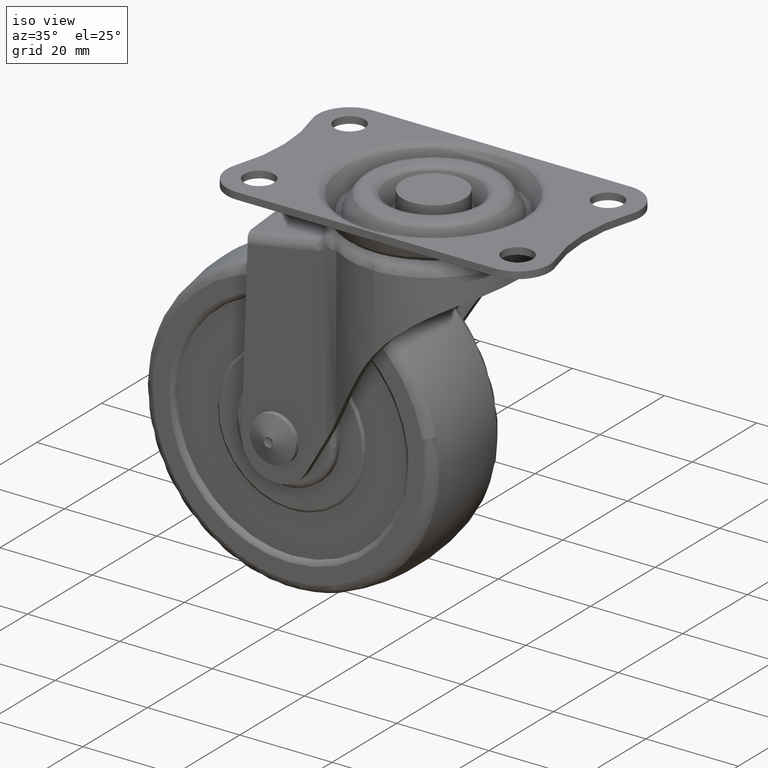
[diagram: clean part render]
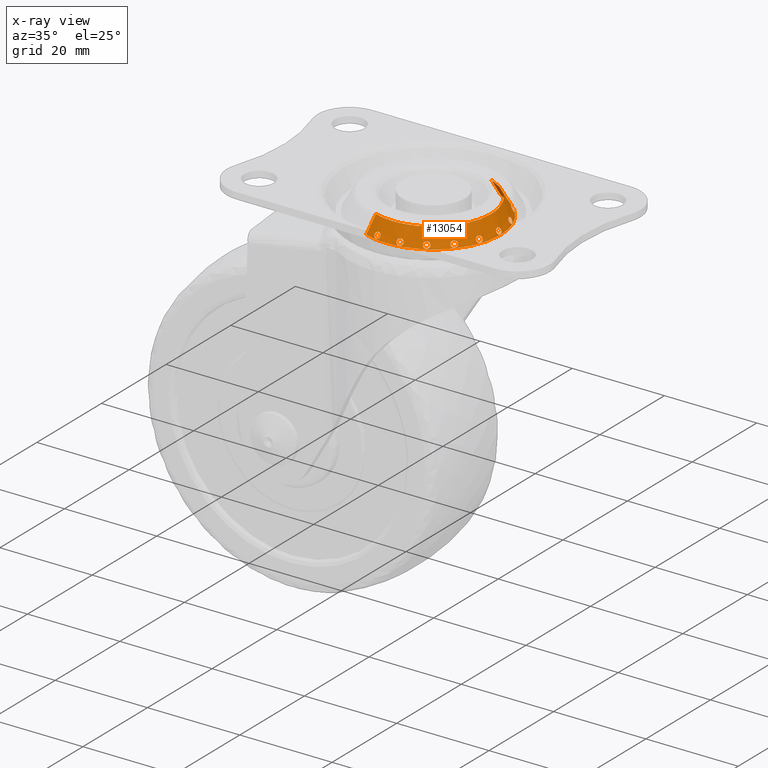
[diagram: x-ray — body ghosted, one internal face saturated and labeled with its STEP entity id]
A machine part, iso view, then the same camera in x-ray: the body is ghosted and one INTERNAL B-rep face — a face not visible from any outside direction — is saturated and labeled: STEP entity #13054.
In plain terms, the highlighted face is a freeform B-spline surface patch.
Its self-contained STEP definition (entity closure, byte-faithful):
#11086=CARTESIAN_POINT('',(-4.363075819583646,-11.669576366690711,-0.000000154223173));
#11087=VERTEX_POINT('',#11086);
#11103=CARTESIAN_POINT('',(-5.080858266469647,-13.589372727095551,-3.549999238642847));
#11104=VERTEX_POINT('',#11103);
#11105=CARTESIAN_POINT('',(-4.363075819583646,-11.669576366690711,-0.000000154223173));
#11106=CARTESIAN_POINT('',(-5.080858266469647,-13.589372727095551,-3.549999238642847));
#11107=QUASI_UNIFORM_CURVE('',1,(#11105,#11106),.UNSPECIFIED.,.F.,.U.);
#11108=EDGE_CURVE('',#11087,#11104,#11107,.T.);
#11125=CARTESIAN_POINT('',(5.080858266580087,13.589372727390730,-3.549999239188730));
#11126=VERTEX_POINT('',#11125);
#11145=CARTESIAN_POINT('',(4.363075819583656,11.669576366690739,-0.000000154223184));
#11146=VERTEX_POINT('',#11145);
#11147=CARTESIAN_POINT('',(4.363075819583656,11.669576366690739,-0.000000154223184));
#11148=CARTESIAN_POINT('',(5.080858266580087,13.589372727390730,-3.549999239188730));
#11149=QUASI_UNIFORM_CURVE('',1,(#11147,#11148),.UNSPECIFIED.,.F.,.U.);
#11150=EDGE_CURVE('',#11146,#11126,#11149,.T.);
#12062=CARTESIAN_POINT('',(4.345131098593241,11.621581030227340,0.088749980999082));
#12063=CARTESIAN_POINT('',(15.966712128820582,7.276449931634098,0.088749980999082));
#12064=CARTESIAN_POINT('',(11.621581030227340,-4.345131098593241,0.088749980999082));
#12065=CARTESIAN_POINT('',(7.276449931634098,-15.966712128820582,0.088749980999082));
#12066=CARTESIAN_POINT('',(-4.345131098593241,-11.621581030227340,0.088749980999082));
#12067=CARTESIAN_POINT('',(5.099251445940236,13.638567520249170,-3.640967970487333));
#12068=CARTESIAN_POINT('',(18.737818966189401,8.539316074308935,-3.640967970487333));
#12069=CARTESIAN_POINT('',(13.638567520249170,-5.099251445940236,-3.640967970487333));
#12070=CARTESIAN_POINT('',(8.539316074308935,-18.737818966189401,-3.640967970487333));
#12071=CARTESIAN_POINT('',(-5.099251445940236,-13.638567520249170,-3.640967970487333));
#12079=(BOUNDED_SURFACE()B_SPLINE_SURFACE(2,1,((#12062,#12067),(#12063,#12068),(#12064,#12069),(#12065,#12070),(#12066,#12071)),.UNSPECIFIED.,.F.,.F.,.U.)B_SPLINE_SURFACE_WITH_KNOTS((3,2,3),(2,2),(0.0,24.124895360719449,48.249790721438892),(0.0,4.306707326584123),.UNSPECIFIED.)GEOMETRIC_REPRESENTATION_ITEM()RATIONAL_B_SPLINE_SURFACE(((1.0,1.0),(0.707106781186548,0.707106781186548),(1.0,1.0),(0.707106781186548,0.707106781186548),(1.0,1.0)))REPRESENTATION_ITEM('')SURFACE());
#12080=CARTESIAN_POINT('',(-0.000002171531988,-12.458548554798311,-4.440892E-016));
#12081=VERTEX_POINT('',#12080);
#12082=CARTESIAN_POINT('',(-0.000002171531988,-12.458548554798311,-4.440892E-016));
#12083=CARTESIAN_POINT('',(-0.696502931972018,-12.458600989901280,-0.000000024619469));
#12084=CARTESIAN_POINT('',(-2.182338487381627,-12.333607003782991,-0.000000077139845));
#12085=CARTESIAN_POINT('',(-3.623732374976158,-11.946112325753861,-0.000000128089327));
#12086=CARTESIAN_POINT('',(-4.363075819583646,-11.669576366690711,-0.000000154223173));
#12087=B_SPLINE_CURVE_WITH_KNOTS('',3,(#12082,#12083,#12084,#12085,#12086),.UNSPECIFIED.,.F.,.U.,(4,1,4),(4.361551E-009,2.089502774767931,4.457596318447136),.UNSPECIFIED.);
#12088=EDGE_CURVE('',#12081,#11087,#12087,.T.);
#12089=ORIENTED_EDGE('',*,*,#12088,.F.);
#12090=CARTESIAN_POINT('',(12.458548554798501,0.0,0.0));
#12091=VERTEX_POINT('',#12090);
#12092=CARTESIAN_POINT('',(12.458548554798501,0.0,0.0));
#12093=CARTESIAN_POINT('',(12.458723973098010,-0.917345101393432,-1.634641E-017));
#12094=CARTESIAN_POINT('',(12.283219471988909,-2.497115236103522,-4.763009E-017));
#12095=CARTESIAN_POINT('',(11.586755708693561,-4.743409053776034,-1.000779E-016));
#12096=CARTESIAN_POINT('',(10.538735629255850,-6.794240018772388,-1.553077E-016));
#12097=CARTESIAN_POINT('',(9.204281966584606,-8.482660586411315,-2.091834E-016));
#12098=CARTESIAN_POINT('',(7.728747020529645,-9.819861979856622,-2.593138E-016));
#12099=CARTESIAN_POINT('',(6.127567130096123,-10.918508646471381,-3.074319E-016));
#12100=CARTESIAN_POINT('',(4.172143907435356,-11.814210374148230,-3.582466E-016));
#12101=CARTESIAN_POINT('',(2.038507520921732,-12.348541533213620,-4.057969E-016));
#12102=CARTESIAN_POINT('',(0.662515102190687,-12.458586493012129,-4.322821E-016));
#12103=CARTESIAN_POINT('',(-0.000002171531988,-12.458548554798311,-4.440892E-016));
#12104=B_SPLINE_CURVE_WITH_KNOTS('',3,(#12092,#12093,#12094,#12095,#12096,#12097,#12098,#12099,#12100,#12101,#12102,#12103),.UNSPECIFIED.,.F.,.U.,(4,1,1,1,1,1,1,1,1,4),(0.000000043175412,2.752002945434295,4.739599933288371,7.032972209632421,9.632102642754111,11.160958294454931,12.995661600806100,15.441928505539749,17.582406498522811,19.569966323446771),.UNSPECIFIED.);
#12105=EDGE_CURVE('',#12091,#12081,#12104,.T.);
#12106=ORIENTED_EDGE('',*,*,#12105,.F.);
#12107=CARTESIAN_POINT('',(4.363075819583656,11.669576366690739,-0.000000154223184));
#12108=CARTESIAN_POINT('',(5.100370530639630,11.394023314715801,-0.000000150581521));
#12109=CARTESIAN_POINT('',(6.237952722065669,10.840716924040329,-0.000000143269115));
#12110=CARTESIAN_POINT('',(7.827507381938415,9.743433454384597,-0.000000128767599));
#12111=CARTESIAN_POINT('',(9.370739115286334,8.330118570021568,-0.000000110089464));
#12112=CARTESIAN_POINT('',(10.662805986453989,6.576131597557975,-0.000000086909063));
#12113=CARTESIAN_POINT('',(11.633125986598250,4.591922070870254,-0.000000060686080));
#12114=CARTESIAN_POINT('',(12.281914733503950,2.518661966544675,-0.000000033286218));
#12115=CARTESIAN_POINT('',(12.458705551180580,0.905167591650609,-0.000000011962545));
#12116=CARTESIAN_POINT('',(12.458548554798501,0.0,0.0));
#12117=B_SPLINE_CURVE_WITH_KNOTS('',3,(#12107,#12108,#12109,#12110,#12111,#12112,#12113,#12114,#12115,#12116),.UNSPECIFIED.,.F.,.U.,(4,1,1,1,1,1,1,4),(0.000000061852061,2.361294715039961,3.778081888796297,5.785190140851881,8.618717848038090,10.271646099266571,12.396839857811660,15.112323931766481),.UNSPECIFIED.);
#12118=EDGE_CURVE('',#11146,#12091,#12117,.T.);
#12119=ORIENTED_EDGE('',*,*,#12118,.F.);
#12120=ORIENTED_EDGE('',*,*,#11150,.T.);
#12121=CARTESIAN_POINT('',(12.533923243645820,7.306636708116592,-3.549999239963274));
#12122=VERTEX_POINT('',#12121);
#12123=CARTESIAN_POINT('',(5.080858266580087,13.589372727390730,-3.549999239188730));
#12124=CARTESIAN_POINT('',(5.711339994112421,13.353665562939611,-3.549999239240063));
#12125=CARTESIAN_POINT('',(7.081152072151622,12.729791393257660,-3.549999239356979));
#12126=CARTESIAN_POINT('',(8.903673550730067,11.528865652445740,-3.549999239530277));
#12127=CARTESIAN_POINT('',(10.862235314883650,9.748149477611070,-3.549999239740046));
#12128=CARTESIAN_POINT('',(11.960477656911729,8.290903075926135,-3.549999239879655));
#12129=CARTESIAN_POINT('',(12.533923243645820,7.306636708116592,-3.549999239963274));
#12130=B_SPLINE_CURVE_WITH_KNOTS('',3,(#12123,#12124,#12125,#12126,#12127,#12128,#12129),.UNSPECIFIED.,.F.,.U.,(4,1,1,1,4),(0.000000014145369,2.019314843563846,4.504652004674679,6.523946625077530,9.941262049271735),.UNSPECIFIED.);
#12131=EDGE_CURVE('',#11126,#12122,#12130,.T.);
#12132=ORIENTED_EDGE('',*,*,#12131,.T.);
#12133=CARTESIAN_POINT('',(14.508141570825201,0.0,-3.549999238596580));
#12134=VERTEX_POINT('',#12133);
#12135=CARTESIAN_POINT('',(12.533923243645820,7.306636708116592,-3.549999239963274));
#12136=CARTESIAN_POINT('',(12.935665689756210,6.617570495039588,-3.549999239685164));
#12137=CARTESIAN_POINT('',(13.676868962307671,5.064638733078343,-3.549999239172048));
#12138=CARTESIAN_POINT('',(14.355831774766781,2.592283957790941,-3.549999238702011));
#12139=CARTESIAN_POINT('',(14.508193412682870,0.837510092449579,-3.549999238596557));
#12140=CARTESIAN_POINT('',(14.508141570825201,0.0,-3.549999238596580));
#12141=B_SPLINE_CURVE_WITH_KNOTS('',3,(#12135,#12136,#12137,#12138,#12139,#12140),.UNSPECIFIED.,.F.,.U.,(4,1,1,4),(0.000000010833838,2.392891701174120,5.144701730487262,7.657238421531816),.UNSPECIFIED.);
#12142=EDGE_CURVE('',#12122,#12134,#12141,.T.);
#12143=ORIENTED_EDGE('',*,*,#12142,.T.);
#12144=CARTESIAN_POINT('',(6.577833222267662,-12.931290807390839,-3.549999238965055));
#12145=VERTEX_POINT('',#12144);
#12146=CARTESIAN_POINT('',(14.508141570825201,0.0,-3.549999238596580));
#12147=CARTESIAN_POINT('',(14.508294998276940,-0.997653766037886,-3.549999238596572));
#12148=CARTESIAN_POINT('',(14.310113179619250,-2.909753875529884,-3.549999238605778));
#12149=CARTESIAN_POINT('',(13.530651905460619,-5.422165080334644,-3.549999238642005));
#12150=CARTESIAN_POINT('',(12.420272305908879,-7.616317776535277,-3.549999238693578));
#12151=CARTESIAN_POINT('',(10.926145983613139,-9.676660195676595,-3.549999238763031));
#12152=CARTESIAN_POINT('',(8.946431478184644,-11.536551339263379,-3.549999238855011));
#12153=CARTESIAN_POINT('',(7.355922491245766,-12.535572166214919,-3.549999238928887));
#12154=CARTESIAN_POINT('',(6.577833222267662,-12.931290807390839,-3.549999238965055));
#12155=B_SPLINE_CURVE_WITH_KNOTS('',3,(#12146,#12147,#12148,#12149,#12150,#12151,#12152,#12153,#12154),.UNSPECIFIED.,.F.,.U.,(4,1,1,1,1,1,4),(0.000000051658304,2.992935399172890,5.736495294660543,7.856513036810670,10.350596292482020,13.343561301598330,15.962374840827920),.UNSPECIFIED.);
#12156=EDGE_CURVE('',#12134,#12145,#12155,.T.);
#12157=ORIENTED_EDGE('',*,*,#12156,.T.);
#12158=CARTESIAN_POINT('',(6.577833222267662,-12.931290807390839,-3.549999238965055));
#12159=CARTESIAN_POINT('',(5.964153530437750,-13.243480075991339,-3.549999238943889));
#12160=CARTESIAN_POINT('',(4.605522091745198,-13.816895507420080,-3.549999238898797));
#12161=CARTESIAN_POINT('',(2.626682636822755,-14.316459622322720,-3.549999238838232));
#12162=CARTESIAN_POINT('',(0.257998782587780,-14.573802675476580,-3.549999238770873));
#12163=CARTESIAN_POINT('',(-2.287350894383335,-14.428835992484069,-3.549999238704935));
#12164=CARTESIAN_POINT('',(-4.201448974999471,-13.918274325548200,-3.549999238661393));
#12165=CARTESIAN_POINT('',(-5.080858266469647,-13.589372727095551,-3.549999238642847));
#12166=B_SPLINE_CURVE_WITH_KNOTS('',3,(#12158,#12159,#12160,#12161,#12162,#12163,#12164,#12165),.UNSPECIFIED.,.F.,.U.,(4,1,1,1,1,4),(0.000000024246830,2.065575426662489,4.412843392895062,6.102830975884948,9.201231967154833,12.017934951738320),.UNSPECIFIED.);
#12167=EDGE_CURVE('',#12145,#11104,#12166,.T.);
#12168=ORIENTED_EDGE('',*,*,#12167,.T.);
#12169=ORIENTED_EDGE('',*,*,#11108,.F.);
#12170=EDGE_LOOP('',(#12089,#12106,#12119,#12120,#12132,#12143,#12157,#12168,#12169));
#12171=FACE_OUTER_BOUND('',#12170,.T.);
#12172=CARTESIAN_POINT('',(10.564917468087840,8.865018350890901,-2.308774742698625));
#12173=VERTEX_POINT('',#12172);
#12174=CARTESIAN_POINT('',(11.070134867447891,9.288302355911506,-3.450370648652838));
#12175=VERTEX_POINT('',#12174);
#12176=CARTESIAN_POINT('',(10.564917468087840,8.865018350890901,-2.308774742698625));
#12177=CARTESIAN_POINT('',(10.593760607787569,8.830644435532049,-2.308774742698625));
#12178=CARTESIAN_POINT('',(10.623585996626881,8.797960836531040,-2.312339167791036));
#12179=CARTESIAN_POINT('',(10.669759368880170,8.751396009655467,-2.322848515478072));
#12180=CARTESIAN_POINT('',(10.685391567219950,8.736287508064097,-2.327217914013798));
#12181=CARTESIAN_POINT('',(10.717154378430180,8.706920737728412,-2.337728901388451));
#12182=CARTESIAN_POINT('',(10.733370285704421,8.692592875800495,-2.343910037545398));
#12183=CARTESIAN_POINT('',(10.782028408414240,8.651609125426990,-2.364891418676062));
#12184=CARTESIAN_POINT('',(10.814498255596400,8.626882703441012,-2.382070915034527));
#12185=CARTESIAN_POINT('',(10.863297119102050,8.593740767507475,-2.412612679054544));
#12186=CARTESIAN_POINT('',(10.879579282967690,8.583355854121217,-2.423593913160504));
#12187=CARTESIAN_POINT('',(10.912186324658650,8.563978833141849,-2.447223681676898));
#12188=CARTESIAN_POINT('',(10.928499539918070,8.555004453995492,-2.459876044108480));
#12189=CARTESIAN_POINT('',(10.976404113002820,8.530837109449879,-2.499506925459953));
#12190=CARTESIAN_POINT('',(11.007345129118720,8.518140880827335,-2.528403737488498));
#12191=CARTESIAN_POINT('',(11.067257014449570,8.499845291209557,-2.591239262536210));
#12192=CARTESIAN_POINT('',(11.096420406944320,8.494309203703018,-2.625511610948856));
#12193=CARTESIAN_POINT('',(11.149970295261680,8.491335433174044,-2.696105479237527));
#12194=CARTESIAN_POINT('',(11.174706467703860,8.493737252250012,-2.732736230242607));
#12195=CARTESIAN_POINT('',(11.208641790425840,8.503477415564564,-2.789753047638675));
#12196=CARTESIAN_POINT('',(11.219401916615309,8.507768836647093,-2.809094807460148));
#12197=CARTESIAN_POINT('',(11.239308961305349,8.518217475392424,-2.847504775003380));
#12198=CARTESIAN_POINT('',(11.257752632580511,8.530566557284759,-2.885884221456376));
#12199=CARTESIAN_POINT('',(11.273309221011891,8.546667450895082,-2.924202570224818));
#12200=CARTESIAN_POINT('',(11.287395319075779,8.564676042804770,-2.962490969691137));
#12201=CARTESIAN_POINT('',(11.293723065882279,8.574694464865219,-2.981710871968198));
#12202=CARTESIAN_POINT('',(11.310051380735640,8.606961304852682,-3.038041342535755));
#12203=CARTESIAN_POINT('',(11.317578099795700,8.631524163126551,-3.074177675468409));
#12204=CARTESIAN_POINT('',(11.323934378885550,8.672789203867108,-3.126342728512868));
#12205=CARTESIAN_POINT('',(11.325223279870180,8.687375443893286,-3.143481056296087));
#12206=CARTESIAN_POINT('',(11.326081059702060,8.717525403019039,-3.176476986748181));
#12207=CARTESIAN_POINT('',(11.325663471138810,8.733089431116575,-3.192353260133240));
#12208=CARTESIAN_POINT('',(11.321956422239319,8.781181596013827,-3.238198899744179));
#12209=CARTESIAN_POINT('',(11.316195066688790,8.815255037057048,-3.266514553150918));
#12210=CARTESIAN_POINT('',(11.298205702506250,8.886413916929195,-3.317948541820633));
#12211=CARTESIAN_POINT('',(11.286205713045019,8.922700556367515,-3.340525010291320));
#12212=CARTESIAN_POINT('',(11.256483180034881,8.996550400588149,-3.379819355399726));
#12213=CARTESIAN_POINT('',(11.238536973350550,9.034477229417417,-3.396633966325178));
#12214=CARTESIAN_POINT('',(11.198053994770881,9.109053539393523,-3.423332556015161));
#12215=CARTESIAN_POINT('',(11.175507928958851,9.145856713562921,-3.433363089414161));
#12216=CARTESIAN_POINT('',(11.138255706245999,9.200322906049257,-3.443523019207356));
#12217=CARTESIAN_POINT('',(11.125195819743061,9.218440286223958,-3.446096120156877));
#12218=CARTESIAN_POINT('',(11.098239738679791,9.253953857542944,-3.449510319058116));
#12219=CARTESIAN_POINT('',(11.084375385466860,9.271318833061484,-3.450358226337281));
#12220=CARTESIAN_POINT('',(11.070134867447891,9.288302355911506,-3.450370648652838));
#12221=B_SPLINE_CURVE_WITH_KNOTS('',3,(#12176,#12177,#12178,#12179,#12180,#12181,#12182,#12183,#12184,#12185,#12186,#12187,#12188,#12189,#12190,#12191,#12192,#12193,#12194,#12195,#12196,#12197,#12198,#12199,#12200,#12201,#12202,#12203,#12204,#12205,#12206,#12207,#12208,#12209,#12210,#12211,#12212,#12213,#12214,#12215,#12216,#12217,#12218,#12219,#12220),.UNSPECIFIED.,.F.,.U.,(4,2,2,2,2,2,2,2,2,2,2,1,2,2,2,2,2,2,2,2,2,2,4),(0.0,0.031250000000004,0.046875000000006,0.062500000000007,0.093750000000010,0.109375000000011,0.125000000000011,0.156250000000012,0.187500000000012,0.218750000000013,0.234375000000013,0.250000000000013,0.265625000000012,0.281250000000012,0.312500000000012,0.328125000000011,0.343750000000011,0.375000000000010,0.406250000000009,0.437500000000008,0.468750000000007,0.484375000000007,0.500000000000006),.UNSPECIFIED.);
#12222=EDGE_CURVE('',#12173,#12175,#12221,.T.);
#12223=ORIENTED_EDGE('',*,*,#12222,.T.);
#12224=CARTESIAN_POINT('',(11.070134867447891,9.288302355911506,-3.450370648652838));
#12225=CARTESIAN_POINT('',(11.041653831409880,9.322269401611617,-3.450395493283951));
#12226=CARTESIAN_POINT('',(11.011677512704161,9.354720275348916,-3.447101498416812));
#12227=CARTESIAN_POINT('',(10.964419020575029,9.401068975434377,-3.437041825271099));
#12228=CARTESIAN_POINT('',(10.948239214934681,9.416157846196446,-3.432808683561262));
#12229=CARTESIAN_POINT('',(10.915756555636600,9.444937751592173,-3.422768534570125));
#12230=CARTESIAN_POINT('',(10.899378219439560,9.458706966436465,-3.416949672610595));
#12231=CARTESIAN_POINT('',(10.849843880279950,9.498178261006601,-3.397116021398472));
#12232=CARTESIAN_POINT('',(10.816291735405320,9.522061650274347,-3.380748549802172));
#12233=CARTESIAN_POINT('',(10.748116169820991,9.564701489918217,-3.341275026736553));
#12234=CARTESIAN_POINT('',(10.714271714056119,9.582940528240458,-3.318586445674877));
#12235=CARTESIAN_POINT('',(10.648179409052190,9.612790655771741,-3.267993755856528));
#12236=CARTESIAN_POINT('',(10.615588428470550,9.624556635632191,-3.239827180470067));
#12237=CARTESIAN_POINT('',(10.552592345322600,9.640938878373914,-3.178230487965220));
#12238=CARTESIAN_POINT('',(10.522959269980159,9.645389391187955,-3.145592231861026));
#12239=CARTESIAN_POINT('',(10.481343347549560,9.646521686343526,-3.093848988697198));
#12240=CARTESIAN_POINT('',(10.467946898555160,9.645968438111883,-3.076133713064666));
#12241=CARTESIAN_POINT('',(10.442153951338410,9.642924103029802,-3.039721367106380));
#12242=CARTESIAN_POINT('',(10.429783732386650,9.640419404946606,-3.021041803176803));
#12243=CARTESIAN_POINT('',(10.395133273473800,9.630156927163467,-2.964913958774108));
#12244=CARTESIAN_POINT('',(10.374954887531860,9.619653567803191,-2.926920770787780));
#12245=CARTESIAN_POINT('',(10.349148501941039,9.598340254355948,-2.869044868599921));
#12246=CARTESIAN_POINT('',(10.341260639936060,9.590244705758540,-2.849492538804070));
#12247=CARTESIAN_POINT('',(10.327351869441699,9.572502986084132,-2.810933785321544));
#12248=CARTESIAN_POINT('',(10.315234332355770,9.553185555884671,-2.772795262508927));
#12249=CARTESIAN_POINT('',(10.306599160957949,9.530795965102891,-2.735478694212702));
#12250=CARTESIAN_POINT('',(10.299707405301190,9.506860504882623,-2.698578054631462));
#12251=CARTESIAN_POINT('',(10.297125989236999,9.494040115784259,-2.680232932029725));
#12252=CARTESIAN_POINT('',(10.292142141487810,9.453825714749339,-2.626699863661023));
#12253=CARTESIAN_POINT('',(10.292432560046720,9.424829410201514,-2.593103045038449));
#12254=CARTESIAN_POINT('',(10.299822118112610,9.362620897179451,-2.529936729662357));
#12255=CARTESIAN_POINT('',(10.307048448412949,9.329182035765413,-2.500270817367516));
#12256=CARTESIAN_POINT('',(10.327548936832970,9.260813322875267,-2.447389697284484));
#12257=CARTESIAN_POINT('',(10.340826691166869,9.225581869885659,-2.423824411611276));
#12258=CARTESIAN_POINT('',(10.373315816842849,9.152975866708939,-2.382455270794152));
#12259=CARTESIAN_POINT('',(10.392184844616850,9.116405692713320,-2.365136224619731));
#12260=CARTESIAN_POINT('',(10.434368159089900,9.043542431867589,-2.337263725042077));
#12261=CARTESIAN_POINT('',(10.457923595303400,9.006865017727712,-2.326590072647137));
#12262=CARTESIAN_POINT('',(10.508883272348040,8.934662016536548,-2.312344059367672));
#12263=CARTESIAN_POINT('',(10.536074328388111,8.899392266249752,-2.308774742698627));
#12264=CARTESIAN_POINT('',(10.564917468087840,8.865018350890901,-2.308774742698625));
#12265=B_SPLINE_CURVE_WITH_KNOTS('',3,(#12224,#12225,#12226,#12227,#12228,#12229,#12230,#12231,#12232,#12233,#12234,#12235,#12236,#12237,#12238,#12239,#12240,#12241,#12242,#12243,#12244,#12245,#12246,#12247,#12248,#12249,#12250,#12251,#12252,#12253,#12254,#12255,#12256,#12257,#12258,#12259,#12260,#12261,#12262,#12263,#12264),.UNSPECIFIED.,.F.,.U.,(4,2,2,2,2,2,2,2,2,2,2,2,1,2,2,2,2,2,2,2,4),(0.500000000000006,0.531250000000006,0.546875000000006,0.562500000000005,0.593750000000004,0.625000000000003,0.656250000000002,0.687500000000001,0.703125000000000,0.718750000000000,0.749999999999999,0.765624999999999,0.781249999999999,0.796874999999999,0.812499999999999,0.843749999999999,0.874999999999999,0.906249999999999,0.937500000000000,0.968750000000000,1.0),.UNSPECIFIED.);
#12266=EDGE_CURVE('',#12175,#12173,#12265,.T.);
#12267=ORIENTED_EDGE('',*,*,#12266,.T.);
#12268=EDGE_LOOP('',(#12223,#12267));
#12269=FACE_BOUND('',#12268,.T.);
#12270=CARTESIAN_POINT('',(6.895760137017910,11.943806914123099,-2.308774742698625));
#12271=VERTEX_POINT('',#12270);
#12272=CARTESIAN_POINT('',(7.225737543024569,12.514358297477390,-3.450370648652801));
#12273=VERTEX_POINT('',#12272);
#12274=CARTESIAN_POINT('',(6.895760137017910,11.943806914123099,-2.308774742698625));
#12275=CARTESIAN_POINT('',(6.934620394011745,11.921370934286930,-2.308774742698626));
#12276=CARTESIAN_POINT('',(6.973825541030837,11.900859281250529,-2.312339167791061));
#12277=CARTESIAN_POINT('',(7.033140426975975,11.872894880443290,-2.322848515478098));
#12278=CARTESIAN_POINT('',(7.052997300282243,11.864044059703421,-2.327217914013826));
#12279=CARTESIAN_POINT('',(7.092888606591131,11.847311843565199,-2.337728901388480));
#12280=CARTESIAN_POINT('',(7.113026992386215,11.839394224370000,-2.343910037545423));
#12281=CARTESIAN_POINT('',(7.172767939414698,11.817524154675059,-2.364891418676087));
#12282=CARTESIAN_POINT('',(7.211736549601389,11.805394260183400,-2.382070915034554));
#12283=CARTESIAN_POINT('',(7.268927691218464,11.790941221838430,-2.412612679054575));
#12284=CARTESIAN_POINT('',(7.287779770018224,11.786751423380840,-2.423593913160534));
#12285=CARTESIAN_POINT('',(7.325047697973464,11.779695244826280,-2.447223681676928));
#12286=CARTESIAN_POINT('',(7.343446524415921,11.776841535187449,-2.459876044108503));
#12287=CARTESIAN_POINT('',(7.396727816890850,11.770515988806350,-2.499506925459977));
#12288=CARTESIAN_POINT('',(7.430145227347762,11.769167887224530,-2.528403737488522));
#12289=CARTESIAN_POINT('',(7.492701444073825,11.772466728275550,-2.591239262536237));
#12290=CARTESIAN_POINT('',(7.521999522240671,11.777238975378539,-2.625511610948869));
#12291=CARTESIAN_POINT('',(7.573337046558933,11.792759685633939,-2.696105479237541));
#12292=CARTESIAN_POINT('',(7.595759974764736,11.803476926540091,-2.732736230242622));
#12293=CARTESIAN_POINT('',(7.624317415057713,11.824236250073200,-2.789753047638689));
#12294=CARTESIAN_POINT('',(7.632960873782953,11.831949046698650,-2.809094807460151));
#12295=CARTESIAN_POINT('',(7.648093731858606,11.848576165702980,-2.847504775003382));
#12296=CARTESIAN_POINT('',(7.661201478897318,11.866488613923661,-2.885884221456383));
#12297=CARTESIAN_POINT('',(7.670313060310620,11.886939171442309,-2.924202570224821));
#12298=CARTESIAN_POINT('',(7.677390361530877,11.908679441649300,-2.962490969691140));
#12299=CARTESIAN_POINT('',(7.679909996362126,11.920257895801109,-2.981710871968189));
#12300=CARTESIAN_POINT('',(7.684217684102522,11.956163419819820,-3.038041342535747));
#12301=CARTESIAN_POINT('',(7.682889494154669,11.981819246016880,-3.074177675468401));
#12302=CARTESIAN_POINT('',(7.674748967562637,12.022769675782540,-3.126342728512859));
#12303=CARTESIAN_POINT('',(7.670971350402480,12.036917087999640,-3.143481056296070));
#12304=CARTESIAN_POINT('',(7.661465506439296,12.065542160088141,-3.176476986748161));
#12305=CARTESIAN_POINT('',(7.655749890427243,12.080024738740841,-3.192353260133219));
#12306=CARTESIAN_POINT('',(7.635817914800501,12.123948705816490,-3.238198899744160));
#12307=CARTESIAN_POINT('',(7.618750208314748,12.153996767278450,-3.266514553150890));
#12308=CARTESIAN_POINT('',(7.577507965247021,12.214711516681639,-3.317948541820606));
#12309=CARTESIAN_POINT('',(7.553820902079287,12.244705565879510,-3.340525010291285));
#12310=CARTESIAN_POINT('',(7.500632722833685,12.303936014539710,-3.379819355399695));
#12311=CARTESIAN_POINT('',(7.470797065409252,12.333437611538040,-3.396633966325140));
#12312=CARTESIAN_POINT('',(7.407248908943773,12.389670425571969,-3.423332556015124));
#12313=CARTESIAN_POINT('',(7.373475110368193,12.416542888099981,-3.433363089414123));
#12314=CARTESIAN_POINT('',(7.319840936616472,12.454983356710249,-3.443523019207317));
#12315=CARTESIAN_POINT('',(7.301372148677340,12.467541380914829,-3.446096120156837));
#12316=CARTESIAN_POINT('',(7.263895361464353,12.491693699112270,-3.449510319058074));
#12317=CARTESIAN_POINT('',(7.244927959642493,12.503269550394171,-3.450358226337244));
#12318=CARTESIAN_POINT('',(7.225737543024569,12.514358297477390,-3.450370648652801));
#12319=B_SPLINE_CURVE_WITH_KNOTS('',3,(#12274,#12275,#12276,#12277,#12278,#12279,#12280,#12281,#12282,#12283,#12284,#12285,#12286,#12287,#12288,#12289,#12290,#12291,#12292,#12293,#12294,#12295,#12296,#12297,#12298,#12299,#12300,#12301,#12302,#12303,#12304,#12305,#12306,#12307,#12308,#12309,#12310,#12311,#12312,#12313,#12314,#12315,#12316,#12317,#12318),.UNSPECIFIED.,.F.,.U.,(4,2,2,2,2,2,2,2,2,2,2,1,2,2,2,2,2,2,2,2,2,2,4),(0.0,0.031250000000002,0.046875000000002,0.062500000000003,0.093750000000003,0.109375000000004,0.125000000000004,0.156250000000005,0.187500000000006,0.218750000000006,0.234375000000006,0.250000000000007,0.265625000000007,0.281250000000007,0.312500000000008,0.328125000000009,0.343750000000010,0.375000000000010,0.406250000000010,0.437500000000011,0.468750000000011,0.484375000000011,0.500000000000011),.UNSPECIFIED.);
#12320=EDGE_CURVE('',#12271,#12273,#12319,.T.);
#12321=ORIENTED_EDGE('',*,*,#12320,.T.);
#12322=CARTESIAN_POINT('',(7.225737543024569,12.514358297477390,-3.450370648652801));
#12323=CARTESIAN_POINT('',(7.187356709788598,12.536535791643910,-3.450395493283915));
#12324=CARTESIAN_POINT('',(7.148089331815836,12.556777133412799,-3.447101498416773));
#12325=CARTESIAN_POINT('',(7.087828686446435,12.584167308614770,-3.437041825271058));
#12326=CARTESIAN_POINT('',(7.067463944739794,12.592812389681781,-3.432808683561228));
#12327=CARTESIAN_POINT('',(7.027096922125539,12.608746930620329,-3.422768534570089));
#12328=CARTESIAN_POINT('',(7.006996971625897,12.616084039309969,-3.416949672610550));
#12329=CARTESIAN_POINT('',(6.946949940815972,12.636233181771489,-3.397116021398427));
#12330=CARTESIAN_POINT('',(6.907252637645294,12.647200717026839,-3.380748549802133));
#12331=CARTESIAN_POINT('',(6.828604877681409,12.663951642979210,-3.341275026736512));
#12332=CARTESIAN_POINT('',(6.790563373843564,12.669515247089370,-3.318586445674837));
#12333=CARTESIAN_POINT('',(6.718247577644103,12.674960292029869,-3.267993755856486));
#12334=CARTESIAN_POINT('',(6.683597871569138,12.674869924631400,-3.239827180470040));
#12335=CARTESIAN_POINT('',(6.618797860086072,12.668718267860500,-3.178230487965192));
#12336=CARTESIAN_POINT('',(6.589429712825047,12.662765273234770,-3.145592231861000));
#12337=CARTESIAN_POINT('',(6.549936269858428,12.649595798882670,-3.093848988697174));
#12338=CARTESIAN_POINT('',(6.537536947633134,12.644494060196809,-3.076133713064636));
#12339=CARTESIAN_POINT('',(6.514340729386343,12.632811613481110,-3.039721367106350));
#12340=CARTESIAN_POINT('',(6.503573183117276,12.626227103116189,-3.021041803176785));
#12341=CARTESIAN_POINT('',(6.474522376692296,12.604732373548719,-2.964913958774091));
#12342=CARTESIAN_POINT('',(6.459153256797090,12.587961029812471,-2.926920770787764));
#12343=CARTESIAN_POINT('',(6.442192769208202,12.559106762743101,-2.869044868599902));
#12344=CARTESIAN_POINT('',(6.437549444179934,12.548801627771430,-2.849492538804062));
#12345=CARTESIAN_POINT('',(6.430547500688062,12.527372785035370,-2.810933785321538));
#12346=CARTESIAN_POINT('',(6.425767555933216,12.505075943593850,-2.772795240572301));
#12347=CARTESIAN_POINT('',(6.425310974958254,12.481083160854331,-2.735478694212696));
#12348=CARTESIAN_POINT('',(6.427021252558441,12.456234066252740,-2.698578054631456));
#12349=CARTESIAN_POINT('',(6.428980346248656,12.443303944929150,-2.680232932029731));
#12350=CARTESIAN_POINT('',(6.438051196501339,12.403810192705830,-2.626699863661029));
#12351=CARTESIAN_POINT('',(6.448241420915445,12.376661908289320,-2.593103045038457));
#12352=CARTESIAN_POINT('',(6.476461898640713,12.320732405361220,-2.529936729662364));
#12353=CARTESIAN_POINT('',(6.494689192072789,12.291781704568020,-2.500270817367530));
#12354=CARTESIAN_POINT('',(6.537336826745266,12.234547709560180,-2.447389697284501));
#12355=CARTESIAN_POINT('',(6.561863701114509,12.205982232606599,-2.423824411611290));
#12356=CARTESIAN_POINT('',(6.617226208380814,12.148866842616901,-2.382455270794167));
#12357=CARTESIAN_POINT('',(6.647465030692870,12.120955707556050,-2.365136224619750));
#12358=CARTESIAN_POINT('',(6.712025082941127,12.066914182274949,-2.337263725042099));
#12359=CARTESIAN_POINT('',(6.746704366971277,12.040505120528049,-2.326590072647160));
#12360=CARTESIAN_POINT('',(6.819285680263693,11.990085729156741,-2.312344059367695));
#12361=CARTESIAN_POINT('',(6.856899880024078,11.966242893959270,-2.308774742698625));
#12362=CARTESIAN_POINT('',(6.895760137017910,11.943806914123099,-2.308774742698625));
#12363=B_SPLINE_CURVE_WITH_KNOTS('',3,(#12322,#12323,#12324,#12325,#12326,#12327,#12328,#12329,#12330,#12331,#12332,#12333,#12334,#12335,#12336,#12337,#12338,#12339,#12340,#12341,#12342,#12343,#12344,#12345,#12346,#12347,#12348,#12349,#12350,#12351,#12352,#12353,#12354,#12355,#12356,#12357,#12358,#12359,#12360,#12361,#12362),.UNSPECIFIED.,.F.,.U.,(4,2,2,2,2,2,2,2,2,2,2,2,1,2,2,2,2,2,2,2,4),(0.500000000000011,0.531250000000011,0.546875000000011,0.562500000000010,0.593750000000010,0.625000000000010,0.656250000000009,0.687500000000009,0.703125000000009,0.718750000000008,0.750000000000007,0.765625000000007,0.781250000000007,0.796875000000006,0.812500000000006,0.843750000000005,0.875000000000004,0.906250000000003,0.937500000000002,0.968750000000001,1.0),.UNSPECIFIED.);
#12364=EDGE_CURVE('',#12273,#12271,#12363,.T.);
#12365=ORIENTED_EDGE('',*,*,#12364,.T.);
#12366=EDGE_LOOP('',(#12321,#12365));
#12367=FACE_BOUND('',#12366,.T.);
#12368=CARTESIAN_POINT('',(-2.394872362837909,-13.581996091667520,-2.308774742722205));
#12369=VERTEX_POINT('',#12368);
#12370=CARTESIAN_POINT('',(-2.509809630384717,-14.230997936109221,-3.450370648652846));
#12371=VERTEX_POINT('',#12370);
#12372=CARTESIAN_POINT('',(-2.394872362837909,-13.581996091667520,-2.308774742722205));
#12373=CARTESIAN_POINT('',(-2.439062616615593,-13.574204157642161,-2.308774742722206));
#12374=CARTESIAN_POINT('',(-2.482918802483475,-13.568338458674130,-2.312339167791089));
#12375=CARTESIAN_POINT('',(-2.548220951480651,-13.562347403383210,-2.322848515478088));
#12376=CARTESIAN_POINT('',(-2.569907467776351,-13.560821803100261,-2.327217914013797));
#12377=CARTESIAN_POINT('',(-2.613115788909972,-13.558742293367009,-2.337728901388423));
#12378=CARTESIAN_POINT('',(-2.634747666688095,-13.558189898631060,-2.343910037545366));
#12379=CARTESIAN_POINT('',(-2.698365798141111,-13.558071362787739,-2.364891418676016));
#12380=CARTESIAN_POINT('',(-2.739132981828377,-13.560001040084270,-2.382070915034467));
#12381=CARTESIAN_POINT('',(-2.797818305826483,-13.565980149056371,-2.412612679054463));
#12382=CARTESIAN_POINT('',(-2.816966460630058,-13.568490817056279,-2.423593913160413));
#12383=CARTESIAN_POINT('',(-2.854400212722125,-13.574606560198299,-2.447223681676786));
#12384=CARTESIAN_POINT('',(-2.872665480340915,-13.578217719565700,-2.459876044108359));
#12385=CARTESIAN_POINT('',(-2.924896981985417,-13.590496925597771,-2.499506925459808));
#12386=CARTESIAN_POINT('',(-2.956760153893780,-13.600659552003309,-2.528403737488333));
#12387=CARTESIAN_POINT('',(-3.014415499046469,-13.625154934806631,-2.591239262535998));
#12388=CARTESIAN_POINT('',(-3.040314482264923,-13.639659913087661,-2.625511610948622));
#12389=CARTESIAN_POINT('',(-3.083247579490172,-13.671803077409299,-2.696105479237257));
#12390=CARTESIAN_POINT('',(-3.100652727390810,-13.689543082722709,-2.732736230242313));
#12391=CARTESIAN_POINT('',(-3.120387836492549,-13.718817685681280,-2.789753047638343));
#12392=CARTESIAN_POINT('',(-3.125872099067462,-13.729021580747871,-2.809094807459811));
#12393=CARTESIAN_POINT('',(-3.134405524507624,-13.749821704069110,-2.847504775003031));
#12394=CARTESIAN_POINT('',(-3.140596359567305,-13.771137013003131,-2.885884221456015));
#12395=CARTESIAN_POINT('',(-3.142163942771491,-13.793470595375259,-2.924202570224439));
#12396=CARTESIAN_POINT('',(-3.141378820171146,-13.816320346440349,-2.962490969690741));
#12397=CARTESIAN_POINT('',(-3.139786437880670,-13.828062300233020,-2.981710871967793));
#12398=CARTESIAN_POINT('',(-3.131553927791960,-13.863275772177211,-3.038041342535351));
#12399=CARTESIAN_POINT('',(-3.121531028145943,-13.886930095018410,-3.074177675468000));
#12400=CARTESIAN_POINT('',(-3.099875563520463,-13.922626687615450,-3.126342728512453));
#12401=CARTESIAN_POINT('',(-3.091487064596754,-13.934628885316529,-3.143481056295672));
#12402=CARTESIAN_POINT('',(-3.072764141911829,-13.958276464212830,-3.176476986747775));
#12403=CARTESIAN_POINT('',(-3.062439886095550,-13.969930780695091,-3.192353260132835));
#12404=CARTESIAN_POINT('',(-3.028687074166833,-14.004388671271100,-3.238198899743791));
#12405=CARTESIAN_POINT('',(-3.002371634040605,-14.026787113477310,-3.266514553150525));
#12406=CARTESIAN_POINT('',(-2.942850935272414,-14.069734637579280,-3.317948541820290));
#12407=CARTESIAN_POINT('',(-2.910333807800072,-14.089818371538430,-3.340525010290993));
#12408=CARTESIAN_POINT('',(-2.840095261710021,-14.127285358381441,-3.379819355399448));
#12409=CARTESIAN_POINT('',(-2.801968774158310,-14.144803395553680,-3.396633966324926));
#12410=CARTESIAN_POINT('',(-2.723020285347726,-14.175910206365010,-3.423332556014978));
#12411=CARTESIAN_POINT('',(-2.682092372565030,-14.189610741675480,-3.433363089414013));
#12412=CARTESIAN_POINT('',(-2.618545320685055,-14.207388998574400,-3.443523019207263));
#12413=CARTESIAN_POINT('',(-2.596895239705463,-14.212872983753121,-3.446096120156802));
#12414=CARTESIAN_POINT('',(-2.553417999979136,-14.222750922804179,-3.449510319058083));
#12415=CARTESIAN_POINT('',(-2.531635298137111,-14.227141431343480,-3.450358226337268));
#12416=CARTESIAN_POINT('',(-2.509809630384696,-14.230997936109230,-3.450370648652846));
#12417=B_SPLINE_CURVE_WITH_KNOTS('',3,(#12372,#12373,#12374,#12375,#12376,#12377,#12378,#12379,#12380,#12381,#12382,#12383,#12384,#12385,#12386,#12387,#12388,#12389,#12390,#12391,#12392,#12393,#12394,#12395,#12396,#12397,#12398,#12399,#12400,#12401,#12402,#12403,#12404,#12405,#12406,#12407,#12408,#12409,#12410,#12411,#12412,#12413,#12414,#12415,#12416),.UNSPECIFIED.,.F.,.U.,(4,2,2,2,2,2,2,2,2,2,2,1,2,2,2,2,2,2,2,2,2,2,4),(0.0,0.031250000000001,0.046875000000001,0.062500000000001,0.093750000000002,0.109375000000003,0.125000000000003,0.156250000000003,0.187500000000004,0.218750000000004,0.234375000000004,0.250000000000004,0.265625000000005,0.281250000000005,0.312500000000005,0.328125000000005,0.343750000000005,0.375000000000005,0.406250000000005,0.437500000000005,0.468750000000005,0.484375000000005,0.500000000000005),.UNSPECIFIED.);
#12418=EDGE_CURVE('',#12369,#12371,#12417,.T.);
#12419=ORIENTED_EDGE('',*,*,#12418,.T.);
#12420=CARTESIAN_POINT('',(-2.509809630384696,-14.230997936109230,-3.450370648652846));
#12421=CARTESIAN_POINT('',(-2.466158294879866,-14.238710945640721,-3.450395493284003));
#12422=CARTESIAN_POINT('',(-2.422336082948371,-14.244301350893510,-3.447101498416913));
#12423=CARTESIAN_POINT('',(-2.356341607522691,-14.249429341846740,-3.437041825271278));
#12424=CARTESIAN_POINT('',(-2.334248218151138,-14.250587908854220,-3.432808683561467));
#12425=CARTESIAN_POINT('',(-2.290865690901789,-14.251755144529660,-3.422768534570376));
#12426=CARTESIAN_POINT('',(-2.269468476773485,-14.251775183472510,-3.416949672610865));
#12427=CARTESIAN_POINT('',(-2.206151312428717,-14.250171889874920,-3.397116021398818));
#12428=CARTESIAN_POINT('',(-2.165096931594163,-14.246900724502551,-3.380748549802576));
#12429=CARTESIAN_POINT('',(-2.085463057819693,-14.235742327876309,-3.341275026737081));
#12430=CARTESIAN_POINT('',(-2.047812872704442,-14.227959445008681,-3.318586445675442));
#12431=CARTESIAN_POINT('',(-1.977995937598531,-14.208342654578340,-3.267993755857202));
#12432=CARTESIAN_POINT('',(-1.945466771958041,-14.196406839562931,-3.239827180470823));
#12433=CARTESIAN_POINT('',(-1.886678669870921,-14.168463263874830,-3.178230487966054));
#12434=CARTESIAN_POINT('',(-1.861117682678641,-14.152824780818070,-3.145592231861905));
#12435=CARTESIAN_POINT('',(-1.828510211258815,-14.126941969925950,-3.093848988698150));
#12436=CARTESIAN_POINT('',(-1.818603557057476,-14.117907085765051,-3.076133713065641));
#12437=CARTESIAN_POINT('',(-1.800801874040857,-14.098995602904250,-3.039721367107407));
#12438=CARTESIAN_POINT('',(-1.792935725446543,-14.089125469384630,-3.021041803177838));
#12439=CARTESIAN_POINT('',(-1.772988527508396,-14.058991069647130,-2.964913958775177));
#12440=CARTESIAN_POINT('',(-1.764282416343250,-14.037974613108190,-2.926920770788877));
#12441=CARTESIAN_POINT('',(-1.758213511869530,-14.005059642868940,-2.869044868601062));
#12442=CARTESIAN_POINT('',(-1.757374777344509,-13.993787872888181,-2.849492538805220));
#12443=CARTESIAN_POINT('',(-1.758124198577830,-13.971256541780489,-2.810933785322690));
#12444=CARTESIAN_POINT('',(-1.761258631411963,-13.948669529022119,-2.772795262510070));
#12445=CARTESIAN_POINT('',(-1.769035457887675,-13.925967526238001,-2.735478694213842));
#12446=CARTESIAN_POINT('',(-1.779141484025114,-13.903201964797621,-2.698578054632601));
#12447=CARTESIAN_POINT('',(-1.785404791857492,-13.891721674708700,-2.680232932030867));
#12448=CARTESIAN_POINT('',(-1.807436261699944,-13.857712100680800,-2.626699863662115));
#12449=CARTESIAN_POINT('',(-1.826297200513118,-13.835686320162230,-2.593103045039511));
#12450=CARTESIAN_POINT('',(-1.871944791794010,-13.792781750812789,-2.529936729663357));
#12451=CARTESIAN_POINT('',(-1.898974567763621,-13.771811092422880,-2.500270817368464));
#12452=CARTESIAN_POINT('',(-1.958625414534843,-13.732615079779070,-2.447389697285322));
#12453=CARTESIAN_POINT('',(-1.991443105912316,-13.714160996963651,-2.423824411612057));
#12454=CARTESIAN_POINT('',(-2.063001459328874,-13.679425179127071,-2.382455270794817));
#12455=CARTESIAN_POINT('',(-2.100962827930642,-13.663539577813751,-2.365136224620305));
#12456=CARTESIAN_POINT('',(-2.180112722847944,-13.634837993614081,-2.337263725042501));
#12457=CARTESIAN_POINT('',(-2.221733021228917,-13.621882606863030,-2.326590072647483));
#12458=CARTESIAN_POINT('',(-2.307181593199896,-13.599328148021851,-2.312344059367844));
#12459=CARTESIAN_POINT('',(-2.350682109060227,-13.589788025692879,-2.308774742722204));
#12460=CARTESIAN_POINT('',(-2.394872362837909,-13.581996091667520,-2.308774742722205));
#12461=B_SPLINE_CURVE_WITH_KNOTS('',3,(#12420,#12421,#12422,#12423,#12424,#12425,#12426,#12427,#12428,#12429,#12430,#12431,#12432,#12433,#12434,#12435,#12436,#12437,#12438,#12439,#12440,#12441,#12442,#12443,#12444,#12445,#12446,#12447,#12448,#12449,#12450,#12451,#12452,#12453,#12454,#12455,#12456,#12457,#12458,#12459,#12460),.UNSPECIFIED.,.F.,.U.,(4,2,2,2,2,2,2,2,2,2,2,2,1,2,2,2,2,2,2,2,4),(0.500000000000005,0.531250000000005,0.546875000000006,0.562500000000006,0.593750000000006,0.625000000000006,0.656250000000006,0.687500000000006,0.703125000000005,0.718750000000005,0.750000000000005,0.765625000000004,0.781250000000004,0.796875000000004,0.812500000000004,0.843750000000003,0.875000000000002,0.906250000000002,0.937500000000001,0.968750000000001,1.0),.UNSPECIFIED.);
#12462=EDGE_CURVE('',#12371,#12369,#12461,.T.);
#12463=ORIENTED_EDGE('',*,*,#12462,.T.);
#12464=EDGE_LOOP('',(#12419,#12463));
#12465=FACE_BOUND('',#12464,.T.);
#12466=CARTESIAN_POINT('',(2.394872362842835,-13.581996091695499,-2.308774742698616));
#12467=VERTEX_POINT('',#12466);
#12468=CARTESIAN_POINT('',(2.508838364526298,-14.231169196485499,-3.450370648652844));
#12469=VERTEX_POINT('',#12468);
#12470=CARTESIAN_POINT('',(2.394872362842835,-13.581996091695499,-2.308774742698616));
#12471=CARTESIAN_POINT('',(2.350682109064668,-13.589788025720949,-2.308774742698615));
#12472=CARTESIAN_POINT('',(2.307464587623031,-13.599275770633019,-2.312339167791030));
#12473=CARTESIAN_POINT('',(2.244051578499314,-13.615980670544980,-2.322848515478066));
#12474=CARTESIAN_POINT('',(2.223151133138182,-13.621964300628539,-2.327217914013793));
#12475=CARTESIAN_POINT('',(2.181837358395259,-13.634788316864361,-2.337728901388447));
#12476=CARTESIAN_POINT('',(2.161321112346648,-13.641667773545320,-2.343910037545392));
#12477=CARTESIAN_POINT('',(2.101499082025920,-13.663315068725730,-2.364891418676057));
#12478=CARTESIAN_POINT('',(2.063850448850293,-13.679071570249480,-2.382070915034522));
#12479=CARTESIAN_POINT('',(2.010749258648426,-13.704761657754410,-2.412612679054544));
#12480=CARTESIAN_POINT('',(1.993614577907005,-13.713669968597509,-2.423593913160504));
#12481=CARTESIAN_POINT('',(1.960530064643729,-13.732219984554460,-2.447223681676899));
#12482=CARTESIAN_POINT('',(1.944601416690080,-13.741860453813340,-2.459876044108480));
#12483=CARTESIAN_POINT('',(1.899719595829194,-13.771263358789380,-2.499506925459953));
#12484=CARTESIAN_POINT('',(1.873253831251861,-13.791710950453380,-2.528403737488499));
#12485=CARTESIAN_POINT('',(1.827453443200232,-13.834448370329630,-2.591239262536214));
#12486=CARTESIAN_POINT('',(1.808077354534616,-13.856936565337350,-2.625511610948858));
#12487=CARTESIAN_POINT('',(1.778727049552825,-13.901825243725520,-2.696105479237532));
#12488=CARTESIAN_POINT('',(1.768438999666816,-13.924448306990820,-2.732736230242609));
#12489=CARTESIAN_POINT('',(1.759906567173234,-13.958707240210950,-2.789753047638680));
#12490=CARTESIAN_POINT('',(1.758242983754309,-13.970171493380221,-2.809094807460153));
#12491=CARTESIAN_POINT('',(1.757338247997713,-13.992635819168740,-2.847504775003386));
#12492=CARTESIAN_POINT('',(1.758811030992297,-14.014783047978240,-2.885884221456385));
#12493=CARTESIAN_POINT('',(1.764976519666786,-14.036305895561210,-2.924202570224824));
#12494=CARTESIAN_POINT('',(1.773529368715019,-14.057509110279581,-2.962490969691143));
#12495=CARTESIAN_POINT('',(1.779041703321960,-14.067998310792939,-2.981710871968205));
#12496=CARTESIAN_POINT('',(1.798821449024268,-14.098272466250680,-3.038041342535762));
#12497=CARTESIAN_POINT('',(1.816330148748963,-14.117072225300770,-3.074177675468419));
#12498=CARTESIAN_POINT('',(1.848888582773558,-14.143209444836410,-3.126342728512877));
#12499=CARTESIAN_POINT('',(1.860876186689612,-14.151618785845150,-3.143481056296099));
#12500=CARTESIAN_POINT('',(1.886557927299638,-14.167436624533281,-3.176476986748192));
#12501=CARTESIAN_POINT('',(1.900245565298944,-14.174856996277940,-3.192353260133251));
#12502=CARTESIAN_POINT('',(1.943748126272699,-14.195692680206539,-3.238198899744190));
#12503=CARTESIAN_POINT('',(1.976137269585750,-14.207739920461160,-3.266514553150924));
#12504=CARTESIAN_POINT('',(2.046757349351142,-14.227740114017219,-3.317948541820640));
#12505=CARTESIAN_POINT('',(2.084182495653312,-14.235491138017810,-3.340525010291324));
#12506=CARTESIAN_POINT('',(2.162999603318970,-14.246675591476530,-3.379819355399733));
#12507=CARTESIAN_POINT('',(2.204818303912267,-14.250097135000971,-3.396633966325189));
#12508=CARTESIAN_POINT('',(2.289644772161915,-14.252326002118171,-3.423332556015172));
#12509=CARTESIAN_POINT('',(2.332790288838535,-14.251202123454251,-3.433363089414168));
#12510=CARTESIAN_POINT('',(2.398585506535544,-14.246173848480650,-3.443523019207362));
#12511=CARTESIAN_POINT('',(2.420805561268318,-14.243922345085920,-3.446096120156885));
#12512=CARTESIAN_POINT('',(2.465039256741302,-14.238334479758141,-3.449510319058121));
#12513=CARTESIAN_POINT('',(2.487009943282921,-14.235010085427980,-3.450358226337287));
#12514=CARTESIAN_POINT('',(2.508838364526311,-14.231169196485499,-3.450370648652844));
#12515=B_SPLINE_CURVE_WITH_KNOTS('',3,(#12470,#12471,#12472,#12473,#12474,#12475,#12476,#12477,#12478,#12479,#12480,#12481,#12482,#12483,#12484,#12485,#12486,#12487,#12488,#12489,#12490,#12491,#12492,#12493,#12494,#12495,#12496,#12497,#12498,#12499,#12500,#12501,#12502,#12503,#12504,#12505,#12506,#12507,#12508,#12509,#12510,#12511,#12512,#12513,#12514),.UNSPECIFIED.,.F.,.U.,(4,2,2,2,2,2,2,2,2,2,2,1,2,2,2,2,2,2,2,2,2,2,4),(0.0,0.031250000000000,0.046875000000000,0.062500000000000,0.093750000000000,0.109375000000000,0.125000000000001,0.156250000000001,0.187500000000002,0.218750000000003,0.234375000000003,0.250000000000003,0.265625000000003,0.281250000000003,0.312500000000004,0.328125000000004,0.343750000000004,0.375000000000004,0.406250000000004,0.437500000000004,0.468750000000003,0.484375000000003,0.500000000000003),.UNSPECIFIED.);
#12516=EDGE_CURVE('',#12467,#12469,#12515,.T.);
#12517=ORIENTED_EDGE('',*,*,#12516,.T.);
#12518=CARTESIAN_POINT('',(2.508838364526311,-14.231169196485499,-3.450370648652844));
#12519=CARTESIAN_POINT('',(2.552495207013091,-14.223487418600550,-3.450395493283958));
#12520=CARTESIAN_POINT('',(2.595586647397454,-14.213752601958101,-3.447101498416825));
#12521=CARTESIAN_POINT('',(2.659355045168418,-14.195999897272459,-3.437041825271111));
#12522=CARTESIAN_POINT('',(2.680512293382959,-14.189532209940660,-3.432808683561272));
#12523=CARTESIAN_POINT('',(2.721677752223213,-14.175791354503909,-3.422768534570133));
#12524=CARTESIAN_POINT('',(2.741791410167057,-14.168491906707690,-3.416949672610598));
#12525=CARTESIAN_POINT('',(2.800741723564865,-14.145329557920860,-3.397116021398476));
#12526=CARTESIAN_POINT('',(2.838201417836519,-14.128214242741860,-3.380748549802179));
#12527=CARTESIAN_POINT('',(2.909216384973568,-14.090492390850370,-3.341275026736558));
#12528=CARTESIAN_POINT('',(2.941934083383662,-14.070301751541860,-3.318586445674882));
#12529=CARTESIAN_POINT('',(3.000831204633924,-14.027989200179430,-3.267993755856531));
#12530=CARTESIAN_POINT('',(3.027316332384304,-14.005647572991720,-3.239827180470071));
#12531=CARTESIAN_POINT('',(3.073001812343574,-13.959282486017530,-3.178230487965222));
#12532=CARTESIAN_POINT('',(3.091672607171628,-13.935844746385740,-3.145592231861030));
#12533=CARTESIAN_POINT('',(3.113461164756233,-13.900370447936711,-3.093848988697203));
#12534=CARTESIAN_POINT('',(3.119680262230236,-13.888492158671241,-3.076133713064667));
#12535=CARTESIAN_POINT('',(3.129940264319893,-13.864632643602020,-3.039721367106380));
#12536=CARTESIAN_POINT('',(3.133956241626912,-13.852667370697819,-3.021041803176805));
#12537=CARTESIAN_POINT('',(3.142393904617362,-13.817527954134929,-2.964913958774109));
#12538=CARTESIAN_POINT('',(3.143386921557262,-13.794801279621710,-2.926920770787780));
#12539=CARTESIAN_POINT('',(3.137832243468540,-13.761795637396570,-2.869044868599918));
#12540=CARTESIAN_POINT('',(3.134765223728101,-13.750916774220020,-2.849492538804071));
#12541=CARTESIAN_POINT('',(3.126354829030423,-13.730000565799280,-2.810933785321544));
#12542=CARTESIAN_POINT('',(3.115684212284820,-13.709847755751840,-2.772795262508925));
#12543=CARTESIAN_POINT('',(3.100611843586371,-13.691174682564400,-2.735478694212700));
#12544=CARTESIAN_POINT('',(3.083329004812724,-13.673238516978840,-2.698578054631459));
#12545=CARTESIAN_POINT('',(3.073516930199239,-13.664592750540340,-2.680232932029724));
#12546=CARTESIAN_POINT('',(3.041182161179620,-13.640169411263480,-2.626699863661020));
#12547=CARTESIAN_POINT('',(3.015925415545879,-13.625922768839310,-2.593103045038447));
#12548=CARTESIAN_POINT('',(2.958356483904170,-13.601218057336080,-2.529936729662353));
#12549=CARTESIAN_POINT('',(2.925784415295808,-13.590756812245299,-2.500270817367514));
#12550=CARTESIAN_POINT('',(2.856325128898889,-13.574326399561951,-2.447389697284482));
#12551=CARTESIAN_POINT('',(2.819174918430704,-13.568209545625511,-2.423824411611270));
#12552=CARTESIAN_POINT('',(2.740051712374418,-13.560042952219280,-2.382455270794146));
#12553=CARTESIAN_POINT('',(2.698946498786395,-13.558098922618480,-2.365136224619723));
#12554=CARTESIAN_POINT('',(2.614753406654892,-13.558199114145109,-2.337263725042070));
#12555=CARTESIAN_POINT('',(2.571212116157888,-13.560260013233290,-2.326590072647131));
#12556=CARTESIAN_POINT('',(2.483202644374540,-13.568290887527001,-2.312344059367666));
#12557=CARTESIAN_POINT('',(2.439062616621003,-13.574204157670049,-2.308774742698616));
#12558=CARTESIAN_POINT('',(2.394872362842835,-13.581996091695499,-2.308774742698616));
#12559=B_SPLINE_CURVE_WITH_KNOTS('',3,(#12518,#12519,#12520,#12521,#12522,#12523,#12524,#12525,#12526,#12527,#12528,#12529,#12530,#12531,#12532,#12533,#12534,#12535,#12536,#12537,#12538,#12539,#12540,#12541,#12542,#12543,#12544,#12545,#12546,#12547,#12548,#12549,#12550,#12551,#12552,#12553,#12554,#12555,#12556,#12557,#12558),.UNSPECIFIED.,.F.,.U.,(4,2,2,2,2,2,2,2,2,2,2,2,1,2,2,2,2,2,2,2,4),(0.500000000000003,0.531250000000003,0.546875000000002,0.562500000000002,0.593750000000001,0.625000000000000,0.656249999999999,0.687499999999998,0.703124999999997,0.718749999999997,0.749999999999996,0.765624999999996,0.781249999999996,0.796874999999997,0.812499999999997,0.843749999999997,0.874999999999998,0.906249999999998,0.937499999999999,0.968750000000000,1.0),.UNSPECIFIED.);
#12560=EDGE_CURVE('',#12469,#12467,#12559,.T.);
#12561=ORIENTED_EDGE('',*,*,#12560,.T.);
#12562=EDGE_LOOP('',(#12517,#12561));
#12563=FACE_BOUND('',#12562,.T.);
#12564=CARTESIAN_POINT('',(6.895760137003679,-11.943806914098500,-2.308774742722200));
#12565=VERTEX_POINT('',#12564);
#12566=CARTESIAN_POINT('',(7.224883426163041,-12.514851422077349,-3.450370648652842));
#12567=VERTEX_POINT('',#12566);
#12568=CARTESIAN_POINT('',(6.895760137003679,-11.943806914098500,-2.308774742722200));
#12569=CARTESIAN_POINT('',(6.856899880010273,-11.966242893934419,-2.308774742722200));
#12570=CARTESIAN_POINT('',(6.819533693911001,-11.989939720718960,-2.312339167791096));
#12571=CARTESIAN_POINT('',(6.765658369438031,-12.027325718366210,-2.322848515478096));
#12572=CARTESIAN_POINT('',(6.748064897179890,-12.040096864719180,-2.327217914013805));
#12573=CARTESIAN_POINT('',(6.713628719788221,-12.066277641303660,-2.337728901388430));
#12574=CARTESIAN_POINT('',(6.696702667530140,-12.079759185395810,-2.343910037545367));
#12575=CARTESIAN_POINT('',(6.647892158077553,-12.120561328321131,-2.364891418676018));
#12576=CARTESIAN_POINT('',(6.617903056209215,-12.148244187447141,-2.382070915034471));
#12577=CARTESIAN_POINT('',(6.576790787032067,-12.190546649786450,-2.412612679054467));
#12578=CARTESIAN_POINT('',(6.563736275731179,-12.204778129712389,-2.423593913160417));
#12579=CARTESIAN_POINT('',(6.538991481871674,-12.233525012790730,-2.447223681676791));
#12580=CARTESIAN_POINT('',(6.527320683608184,-12.248032009070309,-2.459876044108361));
#12581=CARTESIAN_POINT('',(6.495201953511861,-12.291012188709500,-2.499506925459809));
#12582=CARTESIAN_POINT('',(6.477325758066675,-12.319278464302970,-2.528403737488338));
#12583=CARTESIAN_POINT('',(6.448904529856855,-12.375103157677881,-2.591239262536004));
#12584=CARTESIAN_POINT('',(6.438388377997740,-12.402862161203920,-2.625511610948622));
#12585=CARTESIAN_POINT('',(6.426160945204517,-12.455082116558630,-2.696105479237256));
#12586=CARTESIAN_POINT('',(6.424230883984800,-12.479859562465160,-2.732736230242312));
#12587=CARTESIAN_POINT('',(6.427930265383329,-12.514970692992490,-2.789753047638342));
#12588=CARTESIAN_POINT('',(6.430288013832560,-12.526312546137850,-2.809094807459808));
#12589=CARTESIAN_POINT('',(6.437121092244200,-12.547731545165391,-2.847504775003028));
#12590=CARTESIAN_POINT('',(6.446079853927891,-12.568039411197651,-2.885884221456015));
#12591=CARTESIAN_POINT('',(6.459234765553911,-12.586155550929540,-2.924202570224437));
#12592=CARTESIAN_POINT('',(6.474523741228140,-12.603154808680030,-2.962490969690740));
#12593=CARTESIAN_POINT('',(6.483291159244519,-12.611126103528060,-2.981710871967791));
#12594=CARTESIAN_POINT('',(6.512232411310669,-12.632809432552190,-3.038041342535347));
#12595=CARTESIAN_POINT('',(6.535115103526289,-12.644487099414849,-3.074177675467998));
#12596=CARTESIAN_POINT('',(6.574649479295198,-12.657912411468820,-3.126342728512451));
#12597=CARTESIAN_POINT('',(6.588790306253077,-12.661714605150911,-3.143481056295661));
#12598=CARTESIAN_POINT('',(6.618333267848442,-12.667794838838670,-3.176476986747766));
#12599=CARTESIAN_POINT('',(6.633733356880001,-12.670086259500319,-3.192353260132832));
#12600=CARTESIAN_POINT('',(6.681738616015828,-12.674786645797809,-3.238198899743789));
#12601=CARTESIAN_POINT('',(6.716294853819183,-12.675029609127810,-3.266514553150520));
#12602=CARTESIAN_POINT('',(6.789496490720576,-12.669670153623761,-3.317948541820284));
#12603=CARTESIAN_POINT('',(6.827315630872136,-12.664153579778430,-3.340525010290991));
#12604=CARTESIAN_POINT('',(6.905204793712156,-12.647706489700850,-3.379819355399445));
#12605=CARTESIAN_POINT('',(6.945671754877128,-12.636618850931891,-3.396633966324919));
#12606=CARTESIAN_POINT('',(7.026144878589504,-12.609700940086141,-3.423332556014969));
#12607=CARTESIAN_POINT('',(7.066304013088787,-12.593888203801431,-3.433363089414004));
#12608=CARTESIAN_POINT('',(7.126411522314492,-12.566659881126640,-3.443523019207254));
#12609=CARTESIAN_POINT('',(7.146521484266564,-12.556944453696550,-3.446096120156792));
#12610=CARTESIAN_POINT('',(7.186176398992330,-12.536564763016630,-3.449510319058074));
#12611=CARTESIAN_POINT('',(7.205685081183818,-12.525926436836080,-3.450358226337263));
#12612=CARTESIAN_POINT('',(7.224883426163033,-12.514851422077349,-3.450370648652842));
#12613=B_SPLINE_CURVE_WITH_KNOTS('',3,(#12568,#12569,#12570,#12571,#12572,#12573,#12574,#12575,#12576,#12577,#12578,#12579,#12580,#12581,#12582,#12583,#12584,#12585,#12586,#12587,#12588,#12589,#12590,#12591,#12592,#12593,#12594,#12595,#12596,#12597,#12598,#12599,#12600,#12601,#12602,#12603,#12604,#12605,#12606,#12607,#12608,#12609,#12610,#12611,#12612),.UNSPECIFIED.,.F.,.U.,(4,2,2,2,2,2,2,2,2,2,2,1,2,2,2,2,2,2,2,2,2,2,4),(0.0,0.031250000000000,0.046875000000000,0.062499999999999,0.093749999999999,0.109374999999999,0.124999999999999,0.156249999999999,0.187499999999998,0.218749999999998,0.234374999999998,0.249999999999998,0.265624999999998,0.281249999999997,0.312499999999997,0.328124999999997,0.343749999999997,0.374999999999997,0.406249999999997,0.437499999999997,0.468749999999997,0.484374999999998,0.499999999999998),.UNSPECIFIED.);
#12614=EDGE_CURVE('',#12565,#12567,#12613,.T.);
#12615=ORIENTED_EDGE('',*,*,#12614,.T.);
#12616=CARTESIAN_POINT('',(7.224883426163033,-12.514851422077349,-3.450370648652842));
#12617=CARTESIAN_POINT('',(7.263280116121466,-12.492701392559900,-3.450395493283999));
#12618=CARTESIAN_POINT('',(7.300443321286391,-12.468815516579960,-3.447101498416903));
#12619=CARTESIAN_POINT('',(7.354294231510106,-12.430323354442651,-3.437041825271265));
#12620=CARTESIAN_POINT('',(7.371963462185245,-12.417009511316699,-3.432808683561459));
#12621=CARTESIAN_POINT('',(7.405946690742827,-12.390017914726920,-3.422768534570369));
#12622=CARTESIAN_POINT('',(7.422350788508215,-12.376279401324251,-3.416949672610856));
#12623=CARTESIAN_POINT('',(7.469823973149353,-12.334351718451821,-3.397116021398809));
#12624=CARTESIAN_POINT('',(7.499170788882757,-12.305456613071989,-3.380748549802570));
#12625=CARTESIAN_POINT('',(7.553001396276414,-12.245721117968770,-3.341275026737075));
#12626=CARTESIAN_POINT('',(7.576840370691397,-12.215558011302090,-3.318586445675433));
#12627=CARTESIAN_POINT('',(7.617713816034438,-12.155653217168741,-3.267993755857194));
#12628=CARTESIAN_POINT('',(7.634960408609214,-12.125600507774930,-3.239827180470819));
#12629=CARTESIAN_POINT('',(7.662032923311917,-12.066406223279600,-3.178230487966050));
#12630=CARTESIAN_POINT('',(7.671561552368012,-12.037996164376599,-3.145592231861901));
#12631=CARTESIAN_POINT('',(7.679903174508024,-11.997209102308529,-3.093848988698145));
#12632=CARTESIAN_POINT('',(7.681684600315283,-11.983920104928780,-3.076133713065635));
#12633=CARTESIAN_POINT('',(7.683165413804603,-11.957990367297469,-3.039721367107402));
#12634=CARTESIAN_POINT('',(7.682846833691670,-11.945373143509549,-3.021041803177837));
#12635=CARTESIAN_POINT('',(7.678757255051377,-11.909467042361300,-2.964913958775178));
#12636=CARTESIAN_POINT('',(7.671917405267866,-11.887771322230080,-2.926920770788877));
#12637=CARTESIAN_POINT('',(7.655409120772784,-11.858655975582790,-2.869044868601059));
#12638=CARTESIAN_POINT('',(7.648806274612066,-11.849482170664430,-2.849492538805220));
#12639=CARTESIAN_POINT('',(7.633749324174957,-11.832703888356519,-2.810933785322691));
#12640=CARTESIAN_POINT('',(7.616829665439944,-11.817415914049320,-2.772795240573447));
#12641=CARTESIAN_POINT('',(7.596279596567602,-11.805024111956310,-2.735478694213843));
#12642=CARTESIAN_POINT('',(7.573904510581571,-11.794080708504740,-2.698578054632601));
#12643=CARTESIAN_POINT('',(7.561727150196266,-11.789312272747040,-2.680232932030872));
#12644=CARTESIAN_POINT('',(7.522989132353854,-11.777420983388019,-2.626699863662117));
#12645=CARTESIAN_POINT('',(7.494382916173009,-11.772671834392590,-2.593103045039514));
#12646=CARTESIAN_POINT('',(7.431836306953755,-11.769146733545430,-2.529936729663360));
#12647=CARTESIAN_POINT('',(7.397650617893491,-11.770456682303159,-2.500270817368469));
#12648=CARTESIAN_POINT('',(7.326760706920491,-11.778773619836800,-2.447389697285325));
#12649=CARTESIAN_POINT('',(7.289758841022901,-11.785731777639141,-2.423824411612061));
#12650=CARTESIAN_POINT('',(7.212614208711721,-11.805119420353980,-2.382455270794820));
#12651=CARTESIAN_POINT('',(7.173323045544525,-11.817351441126259,-2.365136224620308));
#12652=CARTESIAN_POINT('',(7.094241685667753,-11.846241323802220,-2.337263725042504));
#12653=CARTESIAN_POINT('',(7.054031125289786,-11.863069933883869,-2.326590072647491));
#12654=CARTESIAN_POINT('',(6.974075994872674,-11.900717499349390,-2.312344059367851));
#12655=CARTESIAN_POINT('',(6.934620393997086,-11.921370934262571,-2.308774742722200));
#12656=CARTESIAN_POINT('',(6.895760137003679,-11.943806914098500,-2.308774742722200));
#12657=B_SPLINE_CURVE_WITH_KNOTS('',3,(#12616,#12617,#12618,#12619,#12620,#12621,#12622,#12623,#12624,#12625,#12626,#12627,#12628,#12629,#12630,#12631,#12632,#12633,#12634,#12635,#12636,#12637,#12638,#12639,#12640,#12641,#12642,#12643,#12644,#12645,#12646,#12647,#12648,#12649,#12650,#12651,#12652,#12653,#12654,#12655,#12656),.UNSPECIFIED.,.F.,.U.,(4,2,2,2,2,2,2,2,2,2,2,2,1,2,2,2,2,2,2,2,4),(0.499999999999998,0.531249999999998,0.546874999999998,0.562499999999997,0.593749999999998,0.624999999999998,0.656249999999998,0.687499999999998,0.703124999999998,0.718749999999998,0.749999999999999,0.765624999999999,0.781249999999999,0.796874999999999,0.812499999999999,0.843749999999999,0.874999999999999,0.906250000000000,0.937500000000000,0.968750000000000,1.0),.UNSPECIFIED.);
#12658=EDGE_CURVE('',#12567,#12565,#12657,.T.);
#12659=ORIENTED_EDGE('',*,*,#12658,.T.);
#12660=EDGE_LOOP('',(#12615,#12659));
#12661=FACE_BOUND('',#12660,.T.);
#12662=CARTESIAN_POINT('',(10.564917468066060,-8.865018350872651,-2.308774742722200));
#12663=VERTEX_POINT('',#12662);
#12664=CARTESIAN_POINT('',(11.069500918682239,-9.289057866630484,-3.450370648652835));
#12665=VERTEX_POINT('',#12664);
#12666=CARTESIAN_POINT('',(10.564917468066060,-8.865018350872651,-2.308774742722200));
#12667=CARTESIAN_POINT('',(10.536074328366640,-8.899392266231121,-2.308774742722200));
#12668=CARTESIAN_POINT('',(10.509066391115461,-8.934439987821794,-2.312339167791099));
#12669=CARTESIAN_POINT('',(10.471226910539450,-8.987997780129607,-2.322848515478099));
#12670=CARTESIAN_POINT('',(10.459062443790550,-9.006016054019797,-2.327217914013805));
#12671=CARTESIAN_POINT('',(10.435657374967320,-9.042395802909761,-2.337728901388433));
#12672=CARTESIAN_POINT('',(10.424363048204009,-9.060853361229196,-2.343910037545373));
#12673=CARTESIAN_POINT('',(10.392451327425929,-9.115889011287150,-2.364891418676023));
#12674=CARTESIAN_POINT('',(10.373738885142201,-9.152159266649333,-2.382070915034477));
#12675=CARTESIAN_POINT('',(10.349574283404991,-9.205971802547065,-2.412612679054473));
#12676=CARTESIAN_POINT('',(10.342174508271579,-9.223809925042511,-2.423593913160423));
#12677=CARTESIAN_POINT('',(10.328754021149560,-9.259286376884221,-2.447223681676797));
#12678=CARTESIAN_POINT('',(10.322748743089440,-9.276910142332710,-2.459876044108366));
#12679=CARTESIAN_POINT('',(10.307267096629280,-9.328283552650696,-2.499506925459815));
#12680=CARTESIAN_POINT('',(10.300136603311470,-9.360959182171259,-2.528403737488343));
#12681=CARTESIAN_POINT('',(10.292522554518230,-9.423137867139104,-2.591239262536009));
#12682=CARTESIAN_POINT('',(10.292134742581711,-9.452819533678982,-2.625511610948627));
#12683=CARTESIAN_POINT('',(10.298504990829640,-9.506072268700018,-2.696105479237263));
#12684=CARTESIAN_POINT('',(10.305165712143999,-9.530015571595303,-2.732736230242319));
#12685=CARTESIAN_POINT('',(10.320650707440951,-9.561743978903147,-2.789753047638349));
#12686=CARTESIAN_POINT('',(10.326745408498731,-9.571595437147341,-2.809094807459814));
#12687=CARTESIAN_POINT('',(10.340492130976690,-9.589385662020442,-2.847504775003034));
#12688=CARTESIAN_POINT('',(10.355856312473220,-9.605404736919784,-2.885884221456018));
#12689=CARTESIAN_POINT('',(10.374413970562900,-9.617929094983202,-2.924202570224442));
#12690=CARTESIAN_POINT('',(10.394594996755600,-9.628674034398767,-2.962490969690744));
#12691=CARTESIAN_POINT('',(10.405560018175350,-9.633165967779018,-2.981710871967795));
#12692=CARTESIAN_POINT('',(10.440172034478820,-9.643643140877378,-3.038041342535351));
#12693=CARTESIAN_POINT('',(10.465668728791631,-9.646790216584948,-3.074177675468002));
#12694=CARTESIAN_POINT('',(10.507410617121939,-9.645884330387045,-3.126342728512453));
#12695=CARTESIAN_POINT('',(10.521999074694170,-9.644620776070024,-3.143481056295668));
#12696=CARTESIAN_POINT('',(10.551839940098830,-9.640230038839944,-3.176476986747772));
#12697=CARTESIAN_POINT('',(10.567095002144359,-9.637116129269012,-3.192353260132835));
#12698=CARTESIAN_POINT('',(10.613812816708361,-9.625114281977586,-3.238198899743789));
#12699=CARTESIAN_POINT('',(10.646368156727240,-9.613523663419606,-3.266514553150520));
#12700=CARTESIAN_POINT('',(10.713322153013291,-9.583450988286336,-3.317948541820284));
#12701=CARTESIAN_POINT('',(10.746973740560930,-9.565332196816760,-3.340525010290987));
#12702=CARTESIAN_POINT('',(10.814540376015261,-9.523237324999405,-3.379819355399441));
#12703=CARTESIAN_POINT('',(10.848774685006720,-9.498977836808670,-3.396633966324920));
#12704=CARTESIAN_POINT('',(10.915188217805341,-9.446159845313979,-3.423332556014972));
#12705=CARTESIAN_POINT('',(10.947517185821001,-9.417565500775522,-3.433363089414002));
#12706=CARTESIAN_POINT('',(10.994687133870469,-9.371421267961317,-3.443523019207252));
#12707=CARTESIAN_POINT('',(11.010261444838999,-9.355413740428361,-3.446096120156788));
#12708=CARTESIAN_POINT('',(11.040554610857420,-9.322700315864470,-3.449510319058067));
#12709=CARTESIAN_POINT('',(11.055248253708999,-9.306031196975861,-3.450358226337257));
#12710=CARTESIAN_POINT('',(11.069500918682239,-9.289057866630484,-3.450370648652835));
#12711=B_SPLINE_CURVE_WITH_KNOTS('',3,(#12666,#12667,#12668,#12669,#12670,#12671,#12672,#12673,#12674,#12675,#12676,#12677,#12678,#12679,#12680,#12681,#12682,#12683,#12684,#12685,#12686,#12687,#12688,#12689,#12690,#12691,#12692,#12693,#12694,#12695,#12696,#12697,#12698,#12699,#12700,#12701,#12702,#12703,#12704,#12705,#12706,#12707,#12708,#12709,#12710),.UNSPECIFIED.,.F.,.U.,(4,2,2,2,2,2,2,2,2,2,2,1,2,2,2,2,2,2,2,2,2,2,4),(0.0,0.031249999999995,0.046874999999993,0.062499999999990,0.093749999999987,0.109374999999985,0.124999999999983,0.156249999999980,0.187499999999978,0.218749999999976,0.234374999999975,0.249999999999974,0.265624999999973,0.281249999999972,0.312499999999971,0.328124999999970,0.343749999999970,0.374999999999969,0.406249999999969,0.437499999999969,0.468749999999968,0.484374999999969,0.499999999999970),.UNSPECIFIED.);
#12712=EDGE_CURVE('',#12663,#12665,#12711,.T.);
#12713=ORIENTED_EDGE('',*,*,#12712,.T.);
#12714=CARTESIAN_POINT('',(11.069500918682239,-9.289057866630484,-3.450370648652835));
#12715=CARTESIAN_POINT('',(11.098006248628479,-9.255111205940031,-3.450395493283992));
#12716=CARTESIAN_POINT('',(11.124758787560589,-9.219955259783724,-3.447101498416903));
#12717=CARTESIAN_POINT('',(11.162196995709300,-9.165366363032268,-3.437041825271264));
#12718=CARTESIAN_POINT('',(11.174247038855540,-9.146812210084555,-3.432808683561453));
#12719=CARTESIAN_POINT('',(11.196949158227349,-9.109825457243964,-3.422768534570362));
#12720=CARTESIAN_POINT('',(11.207665119525080,-9.091304945710064,-3.416949672610853));
#12721=CARTESIAN_POINT('',(11.237935208712230,-9.035669026093103,-3.397116021398807));
#12722=CARTESIAN_POINT('',(11.255629486817041,-8.998479306667552,-3.380748549802561));
#12723=CARTESIAN_POINT('',(11.285782968760451,-8.923935150663978,-3.341275026737063));
#12724=CARTESIAN_POINT('',(11.297867887040020,-8.887437692463175,-3.318586445675426));
#12725=CARTESIAN_POINT('',(11.315787715739599,-8.817166057831923,-3.267993755857187));
#12726=CARTESIAN_POINT('',(11.321715579541619,-8.783027066515643,-3.239827180470812));
#12727=CARTESIAN_POINT('',(11.326909784166711,-8.718143288823873,-3.178230487966042));
#12728=CARTESIAN_POINT('',(11.326146954159039,-8.688187583041163,-3.145592231861894));
#12729=CARTESIAN_POINT('',(11.320035518115031,-8.647007278992364,-3.093848988698138));
#12730=CARTESIAN_POINT('',(11.317164406012120,-8.633910422707050,-3.076133713065627));
#12731=CARTESIAN_POINT('',(11.309687422939740,-8.609037971554141,-3.039721367107394));
#12732=CARTESIAN_POINT('',(11.305072710870171,-8.597290620281711,-3.021041803177832));
#12733=CARTESIAN_POINT('',(11.288949154138770,-8.564948640264207,-2.964913958775170));
#12734=CARTESIAN_POINT('',(11.275101424461081,-8.546900698557549,-2.926920770788869));
#12735=CARTESIAN_POINT('',(11.249630676305941,-8.525187387990538,-2.869044868601052));
#12736=CARTESIAN_POINT('',(11.240288404419511,-8.518825137594471,-2.849492538805217));
#12737=CARTESIAN_POINT('',(11.220400988682510,-8.508208489866808,-2.810933785322685));
#12738=CARTESIAN_POINT('',(11.199272915059300,-8.499629357329143,-2.772795240573446));
#12739=CARTESIAN_POINT('',(11.175723921055400,-8.495013409845170,-2.735478694213839));
#12740=CARTESIAN_POINT('',(11.150955353447889,-8.492382704491313,-2.698578054632597));
#12741=CARTESIAN_POINT('',(11.137881476671890,-8.492066743141420,-2.680232932030868));
#12742=CARTESIAN_POINT('',(11.097412586670600,-8.494141768693741,-2.626699863662115));
#12743=CARTESIAN_POINT('',(11.068907231796761,-8.499462930585887,-2.593103045039510));
#12744=CARTESIAN_POINT('',(11.008926989161271,-8.517542619581990,-2.529936729663356));
#12745=CARTESIAN_POINT('',(10.977250978276730,-8.530465763035329,-2.500270817368469));
#12746=CARTESIAN_POINT('',(10.913480812214511,-8.562526905374547,-2.447389697285325));
#12747=CARTESIAN_POINT('',(10.881090262004070,-8.581720818393286,-2.423824411612060));
#12748=CARTESIAN_POINT('',(10.815228984628099,-8.626324261386724,-2.382455270794821));
#12749=CARTESIAN_POINT('',(10.782490966035491,-8.651256970301615,-2.365136224620310));
#12750=CARTESIAN_POINT('',(10.718059717531061,-8.705451997907034,-2.337263725042508));
#12751=CARTESIAN_POINT('',(10.686029874298320,-8.735018540242521,-2.326590072647492));
#12752=CARTESIAN_POINT('',(10.623772853987759,-8.797741944865905,-2.312344059367852));
#12753=CARTESIAN_POINT('',(10.593760607765480,-8.830644435514174,-2.308774742722200));
#12754=CARTESIAN_POINT('',(10.564917468066060,-8.865018350872651,-2.308774742722200));
#12755=B_SPLINE_CURVE_WITH_KNOTS('',3,(#12714,#12715,#12716,#12717,#12718,#12719,#12720,#12721,#12722,#12723,#12724,#12725,#12726,#12727,#12728,#12729,#12730,#12731,#12732,#12733,#12734,#12735,#12736,#12737,#12738,#12739,#12740,#12741,#12742,#12743,#12744,#12745,#12746,#12747,#12748,#12749,#12750,#12751,#12752,#12753,#12754),.UNSPECIFIED.,.F.,.U.,(4,2,2,2,2,2,2,2,2,2,2,2,1,2,2,2,2,2,2,2,4),(0.499999999999970,0.531249999999972,0.546874999999972,0.562499999999972,0.593749999999973,0.624999999999973,0.656249999999974,0.687499999999974,0.703124999999975,0.718749999999975,0.749999999999977,0.765624999999978,0.781249999999980,0.796874999999981,0.812499999999983,0.843749999999985,0.874999999999988,0.906249999999991,0.937499999999994,0.968749999999997,1.0),.UNSPECIFIED.);
#12756=EDGE_CURVE('',#12665,#12663,#12755,.T.);
#12757=ORIENTED_EDGE('',*,*,#12756,.T.);
#12758=EDGE_LOOP('',(#12713,#12757));
#12759=FACE_BOUND('',#12758,.T.);
#12760=CARTESIAN_POINT('',(12.959789830903979,-4.716977740794871,-2.308774742722195));
#12761=VERTEX_POINT('',#12760);
#12762=CARTESIAN_POINT('',(13.578973231973849,-4.942866840574798,-3.450370648652813));
#12763=VERTEX_POINT('',#12762);
#12764=CARTESIAN_POINT('',(12.959789830903979,-4.716977740794871,-2.308774742722195));
#12765=CARTESIAN_POINT('',(12.944442716825710,-4.759143590178709,-2.308774742722195));
#12766=CARTESIAN_POINT('',(12.931050584249800,-4.801314934102399,-2.312339167791111));
#12767=CARTESIAN_POINT('',(12.913810947379471,-4.864584660889604,-2.322848515478110));
#12768=CARTESIAN_POINT('',(12.908542700358140,-4.885676792564455,-2.327217914013818));
#12769=CARTESIAN_POINT('',(12.898991736825471,-4.927867579135868,-2.337728901388445));
#12770=CARTESIAN_POINT('',(12.894691398051100,-4.949074897744710,-2.343910037545381));
#12771=CARTESIAN_POINT('',(12.883527490440191,-5.011705943298610,-2.364891418676030));
#12772=CARTESIAN_POINT('',(12.878348704446729,-5.052188866808333,-2.382070915034484));
#12773=CARTESIAN_POINT('',(12.874046377750499,-5.111020890246779,-2.412612679054479));
#12774=CARTESIAN_POINT('',(12.873193860874711,-5.130314114476127,-2.423593913160428));
#12775=CARTESIAN_POINT('',(12.872716389302390,-5.168241151412424,-2.447223681676801));
#12776=CARTESIAN_POINT('',(12.873100956608161,-5.186855999817656,-2.459876044108369));
#12777=CARTESIAN_POINT('',(12.876123708832010,-5.240426249339296,-2.499506925459817));
#12778=CARTESIAN_POINT('',(12.880598960370580,-5.273570069625844,-2.528403737488342));
#12779=CARTESIAN_POINT('',(12.894710457649770,-5.334603079119857,-2.591239262536005));
#12780=CARTESIAN_POINT('',(12.904497761478879,-5.362627361634118,-2.625511610948619));
#12781=CARTESIAN_POINT('',(12.928697344814420,-5.410489810551274,-2.696105479237253));
#12782=CARTESIAN_POINT('',(12.943145467370559,-5.430711054740623,-2.732736230242309));
#12783=CARTESIAN_POINT('',(12.968548357598941,-5.455229824646235,-2.789753047638338));
#12784=CARTESIAN_POINT('',(12.977644900369461,-5.462402656732980,-2.809094807459796));
#12785=CARTESIAN_POINT('',(12.996647209302891,-5.474418343776187,-2.847504775003016));
#12786=CARTESIAN_POINT('',(13.016563663572621,-5.484216490693366,-2.885884221456000));
#12787=CARTESIAN_POINT('',(13.038285740678459,-5.489638444666046,-2.924202570224424));
#12788=CARTESIAN_POINT('',(13.060924687790569,-5.492833067474759,-2.962490969690727));
#12789=CARTESIAN_POINT('',(13.072764769203980,-5.493303845927689,-2.981710871967772));
#12790=CARTESIAN_POINT('',(13.108872829759630,-5.491311161398011,-3.038041342535328));
#12791=CARTESIAN_POINT('',(13.133908248544371,-5.485548062174266,-3.074177675467977));
#12792=CARTESIAN_POINT('',(13.172822961658790,-5.470420240969408,-3.126342728512429));
#12793=CARTESIAN_POINT('',(13.186099466559449,-5.464243341951995,-3.143481056295638));
#12794=CARTESIAN_POINT('',(13.212638987001339,-5.449911221514415,-3.176476986747741));
#12795=CARTESIAN_POINT('',(13.225909036437390,-5.441767565161561,-3.192353260132804));
#12796=CARTESIAN_POINT('',(13.265704548511639,-5.414511084192968,-3.238198899743759));
#12797=CARTESIAN_POINT('',(13.292332336274130,-5.392484883404421,-3.266514553150488));
#12798=CARTESIAN_POINT('',(13.344963051856990,-5.341326197088418,-3.317948541820253));
#12799=CARTESIAN_POINT('',(13.370388208697930,-5.312790581650720,-3.340525010290957));
#12800=CARTESIAN_POINT('',(13.419482783353450,-5.250125190888895,-3.379819355399412));
#12801=CARTESIAN_POINT('',(13.443355277262411,-5.215619905584118,-3.396633966324887));
#12802=CARTESIAN_POINT('',(13.487698766932411,-5.143272462725273,-3.423332556014939));
#12803=CARTESIAN_POINT('',(13.508298217797011,-5.105345409891993,-3.433363089413977));
#12804=CARTESIAN_POINT('',(13.536841212781180,-5.045850942432114,-3.443523019207227));
#12805=CARTESIAN_POINT('',(13.546001381011010,-5.025482058862722,-3.446096120156761));
#12806=CARTESIAN_POINT('',(13.563278995420751,-4.984380622215987,-3.449510319058045));
#12807=CARTESIAN_POINT('',(13.571385328749461,-4.963691252367286,-3.450358226337235));
#12808=CARTESIAN_POINT('',(13.578973231973860,-4.942866840574776,-3.450370648652813));
#12809=B_SPLINE_CURVE_WITH_KNOTS('',3,(#12764,#12765,#12766,#12767,#12768,#12769,#12770,#12771,#12772,#12773,#12774,#12775,#12776,#12777,#12778,#12779,#12780,#12781,#12782,#12783,#12784,#12785,#12786,#12787,#12788,#12789,#12790,#12791,#12792,#12793,#12794,#12795,#12796,#12797,#12798,#12799,#12800,#12801,#12802,#12803,#12804,#12805,#12806,#12807,#12808),.UNSPECIFIED.,.F.,.U.,(4,2,2,2,2,2,2,2,2,2,2,1,2,2,2,2,2,2,2,2,2,2,4),(0.0,0.031249999999999,0.046874999999999,0.062499999999998,0.093749999999998,0.109374999999998,0.124999999999998,0.156249999999998,0.187499999999998,0.218749999999999,0.234374999999999,0.249999999999999,0.265624999999999,0.281249999999999,0.312499999999999,0.328125000000000,0.343750000000000,0.375000000000001,0.406250000000002,0.437500000000003,0.468750000000004,0.484375000000005,0.500000000000006),.UNSPECIFIED.);
#12810=EDGE_CURVE('',#12761,#12763,#12809,.T.);
#12811=ORIENTED_EDGE('',*,*,#12810,.T.);
#12812=CARTESIAN_POINT('',(13.578973231973860,-4.942866840574776,-3.450370648652813));
#12813=CARTESIAN_POINT('',(13.594149038422669,-4.901218016989754,-3.450395493283971));
#12814=CARTESIAN_POINT('',(13.607264160101341,-4.859032326610037,-3.447101498416874));
#12815=CARTESIAN_POINT('',(13.623774065743209,-4.794930921838970,-3.437041825271237));
#12816=CARTESIAN_POINT('',(13.628751508317411,-4.773374363745123,-3.432808683561428));
#12817=CARTESIAN_POINT('',(13.637434307859619,-4.730853602912648,-3.422768534570338));
#12818=CARTESIAN_POINT('',(13.641169629606431,-4.709784940272137,-3.416949672610830));
#12819=CARTESIAN_POINT('',(13.650585603844670,-4.647151296915173,-3.397116021398784));
#12820=CARTESIAN_POINT('',(13.654493153241740,-4.606152592468427,-3.380748549802541));
#12821=CARTESIAN_POINT('',(13.657332554794520,-4.525790900933099,-3.341275026737042));
#12822=CARTESIAN_POINT('',(13.656205797439791,-4.487361223302314,-3.318586445675414));
#12823=CARTESIAN_POINT('',(13.649010613686210,-4.415198544408558,-3.267993755857172));
#12824=CARTESIAN_POINT('',(13.642904760855011,-4.381090937360407,-3.239827180470805));
#12825=CARTESIAN_POINT('',(13.625594157666409,-4.318343607644399,-3.178230487966035));
#12826=CARTESIAN_POINT('',(13.614631877152060,-4.290455355198508,-3.145592231861885));
#12827=CARTESIAN_POINT('',(13.594804512306141,-4.253848761593824,-3.093848988698129));
#12828=CARTESIAN_POINT('',(13.587627160785759,-4.242523720559960,-3.076133713065621));
#12829=CARTESIAN_POINT('',(13.572094215658719,-4.221708540572771,-3.039721367107388));
#12830=CARTESIAN_POINT('',(13.563739974014011,-4.212247965751741,-3.021041803177837));
#12831=CARTESIAN_POINT('',(13.537527178091670,-4.187371026971879,-2.964913958775174));
#12832=CARTESIAN_POINT('',(13.518341809089669,-4.175147711818854,-2.926920770788871));
#12833=CARTESIAN_POINT('',(13.486980745410181,-4.163455383040834,-2.869044868601055));
#12834=CARTESIAN_POINT('',(13.476025863664800,-4.160672068461639,-2.849492538805228));
#12835=CARTESIAN_POINT('',(13.453706698472780,-4.157497579715222,-2.810933785322697));
#12836=CARTESIAN_POINT('',(13.430918567457480,-4.156662058945631,-2.772795240573454));
#12837=CARTESIAN_POINT('',(13.407211004545029,-4.160378717461397,-2.735478694213848));
#12838=CARTESIAN_POINT('',(13.383036410114659,-4.166378012096007,-2.698578054632608));
#12839=CARTESIAN_POINT('',(13.370642919437000,-4.170552634755803,-2.680232932030885));
#12840=CARTESIAN_POINT('',(13.333324302668210,-4.186343696513730,-2.626699863662132));
#12841=CARTESIAN_POINT('',(13.308357975593390,-4.201093358637294,-2.593103045039526));
#12842=CARTESIAN_POINT('',(13.258178602017599,-4.238597160155933,-2.529936729663372));
#12843=CARTESIAN_POINT('',(13.232832863709600,-4.261574776479099,-2.500270817368490));
#12844=CARTESIAN_POINT('',(13.183874065732679,-4.313513076685731,-2.447389697285346));
#12845=CARTESIAN_POINT('',(13.160001609598391,-4.342627675738814,-2.423824411612078));
#12846=CARTESIAN_POINT('',(13.113367529218079,-4.407067085509135,-2.382455270794837));
#12847=CARTESIAN_POINT('',(13.091131343404030,-4.441693229903903,-2.365136224620334));
#12848=CARTESIAN_POINT('',(13.049121565745541,-4.514656682276136,-2.337263725042529));
#12849=CARTESIAN_POINT('',(13.029135711462031,-4.553394995504099,-2.326590072647510));
#12850=CARTESIAN_POINT('',(12.992085916723241,-4.633628870988907,-2.312344059367869));
#12851=CARTESIAN_POINT('',(12.975136944982250,-4.674811891411036,-2.308774742722195));
#12852=CARTESIAN_POINT('',(12.959789830903979,-4.716977740794872,-2.308774742722195));
#12853=B_SPLINE_CURVE_WITH_KNOTS('',3,(#12812,#12813,#12814,#12815,#12816,#12817,#12818,#12819,#12820,#12821,#12822,#12823,#12824,#12825,#12826,#12827,#12828,#12829,#12830,#12831,#12832,#12833,#12834,#12835,#12836,#12837,#12838,#12839,#12840,#12841,#12842,#12843,#12844,#12845,#12846,#12847,#12848,#12849,#12850,#12851,#12852),.UNSPECIFIED.,.F.,.U.,(4,2,2,2,2,2,2,2,2,2,2,2,1,2,2,2,2,2,2,2,4),(0.500000000000006,0.531250000000007,0.546875000000008,0.562500000000008,0.593750000000009,0.625000000000010,0.656250000000011,0.687500000000011,0.703125000000012,0.718750000000012,0.750000000000011,0.765625000000010,0.781250000000010,0.796875000000009,0.812500000000008,0.843750000000007,0.875000000000006,0.906250000000004,0.937500000000003,0.968750000000001,1.0),.UNSPECIFIED.);
#12854=EDGE_CURVE('',#12763,#12761,#12853,.T.);
#12855=ORIENTED_EDGE('',*,*,#12854,.T.);
#12856=EDGE_LOOP('',(#12811,#12855));
#12857=FACE_BOUND('',#12856,.T.);
#12858=CARTESIAN_POINT('',(13.791520274035779,1.182458E-015,-2.308774742698610));
#12859=VERTEX_POINT('',#12858);
#12860=CARTESIAN_POINT('',(14.450620969188320,-0.000493124599512,-3.450370648652850));
#12861=VERTEX_POINT('',#12860);
#12862=CARTESIAN_POINT('',(13.791520274035779,1.182458E-015,-2.308774742698610));
#12863=CARTESIAN_POINT('',(13.791520274035779,-0.044871959672337,-2.308774742698610));
#12864=CARTESIAN_POINT('',(13.793359234942180,-0.089080439468181,-2.312339167791027));
#12865=CARTESIAN_POINT('',(13.798798796414060,-0.154430837922873,-2.322848515478064));
#12866=CARTESIAN_POINT('',(13.801062197462130,-0.176052805015767,-2.327217914013792));
#12867=CARTESIAN_POINT('',(13.806517326379270,-0.218965797738520,-2.337728901388445));
#12868=CARTESIAN_POINT('',(13.809729659916259,-0.240364961025883,-2.343910037545388));
#12869=CARTESIAN_POINT('',(13.820660097492150,-0.303037173646165,-2.364891418676054));
#12870=CARTESIAN_POINT('',(13.829639605810501,-0.342849927263843,-2.382070915034518));
#12871=CARTESIAN_POINT('',(13.845718478250420,-0.399605427948152,-2.412612679054540));
#12872=CARTESIAN_POINT('',(13.851516045749291,-0.418026706331686,-2.423593913160500));
#12873=CARTESIAN_POINT('',(13.864039179845021,-0.453829767964612,-2.447223681676895));
#12874=CARTESIAN_POINT('',(13.870767208024001,-0.471190473883026,-2.459876044108476));
#12875=CARTESIAN_POINT('',(13.891929770402610,-0.520496199903335,-2.499506925459950));
#12876=CARTESIAN_POINT('',(13.907470985414340,-0.550110577078619,-2.528403737488497));
#12877=CARTESIAN_POINT('',(13.941605973930599,-0.602636429402529,-2.591239262536212));
#12878=CARTESIAN_POINT('',(13.960387900238350,-0.625623185825589,-2.625511610948854));
#12879=CARTESIAN_POINT('',(13.999497991763439,-0.662322430924913,-2.696105479237529));
#12880=CARTESIAN_POINT('',(14.019990858749550,-0.676382635925291,-2.732736230242610));
#12881=CARTESIAN_POINT('',(14.052247680441090,-0.690734442919515,-2.789753047638681));
#12882=CARTESIAN_POINT('',(14.063248887615590,-0.694363499439417,-2.809094807460152));
#12883=CARTESIAN_POINT('',(14.085214824102900,-0.699155379462633,-2.847504775003384));
#12884=CARTESIAN_POINT('',(14.107281332825339,-0.701550797274196,-2.885884221456386));
#12885=CARTESIAN_POINT('',(14.129547825864700,-0.699216379487442,-2.924202570224825));
#12886=CARTESIAN_POINT('',(14.151914102759219,-0.694475367030924,-2.962490969691144));
#12887=CARTESIAN_POINT('',(14.163201155606860,-0.690868207727140,-2.981710871968201));
#12888=CARTESIAN_POINT('',(14.196450095413461,-0.676646012732537,-3.038041342535762));
#12889=CARTESIAN_POINT('',(14.218004597681270,-0.662667853398118,-3.074177675468416));
#12890=CARTESIAN_POINT('',(14.249398446858200,-0.635142735686404,-3.126342728512877));
#12891=CARTESIAN_POINT('',(14.259761656655950,-0.624797517151385,-3.143481056296095));
#12892=CARTESIAN_POINT('',(14.279798774288160,-0.602252678750606,-3.176476986748190));
#12893=CARTESIAN_POINT('',(14.289483247307681,-0.590061520759538,-3.192353260133248));
#12894=CARTESIAN_POINT('',(14.317556530816820,-0.550837939981340,-3.238198899744192));
#12895=CARTESIAN_POINT('',(14.335045062134469,-0.521032841849357,-3.266514553150922));
#12896=CARTESIAN_POINT('',(14.367004455968191,-0.454958636942054,-3.317948541820643));
#12897=CARTESIAN_POINT('',(14.381136532952040,-0.419448013898814,-3.340525010291325));
#12898=CARTESIAN_POINT('',(14.405837516546510,-0.343770475160982,-3.379819355399735));
#12899=CARTESIAN_POINT('',(14.416468820287070,-0.303181239393637,-3.396633966325190));
#12900=CARTESIAN_POINT('',(14.433393787533991,-0.220030514513901,-3.423332556015174));
#12901=CARTESIAN_POINT('',(14.439779123457710,-0.177345315701141,-3.433363089414173));
#12902=CARTESIAN_POINT('',(14.446252458931720,-0.111676524416026,-3.443523019207370));
#12903=CARTESIAN_POINT('',(14.447893632944661,-0.089403072781329,-3.446096120156889));
#12904=CARTESIAN_POINT('',(14.450071760457440,-0.044871063903937,-3.449510319058128));
#12905=CARTESIAN_POINT('',(14.450613040827070,-0.022656886441469,-3.450358226337293));
#12906=CARTESIAN_POINT('',(14.450620969188320,-0.000493124599512,-3.450370648652850));
#12907=B_SPLINE_CURVE_WITH_KNOTS('',3,(#12862,#12863,#12864,#12865,#12866,#12867,#12868,#12869,#12870,#12871,#12872,#12873,#12874,#12875,#12876,#12877,#12878,#12879,#12880,#12881,#12882,#12883,#12884,#12885,#12886,#12887,#12888,#12889,#12890,#12891,#12892,#12893,#12894,#12895,#12896,#12897,#12898,#12899,#12900,#12901,#12902,#12903,#12904,#12905,#12906),.UNSPECIFIED.,.F.,.U.,(4,2,2,2,2,2,2,2,2,2,2,1,2,2,2,2,2,2,2,2,2,2,4),(0.0,0.031250000000001,0.046875000000001,0.062500000000001,0.093750000000002,0.109375000000003,0.125000000000003,0.156250000000004,0.187500000000005,0.218750000000006,0.234375000000007,0.250000000000007,0.265625000000008,0.281250000000009,0.312500000000009,0.328125000000009,0.343750000000009,0.375000000000009,0.406250000000008,0.437500000000008,0.468750000000008,0.484375000000008,0.500000000000008),.UNSPECIFIED.);
#12908=EDGE_CURVE('',#12859,#12861,#12907,.T.);
#12909=ORIENTED_EDGE('',*,*,#12908,.T.);
#12910=CARTESIAN_POINT('',(14.450620969188320,-0.000493124599512,-3.450370648652850));
#12911=CARTESIAN_POINT('',(14.450636825910809,0.043834399084500,-3.450395493283963));
#12912=CARTESIAN_POINT('',(14.448532653102980,0.087961616833365,-3.447101498416827));
#12913=CARTESIAN_POINT('',(14.442122917957279,0.153843954172698,-3.437041825271113));
#12914=CARTESIAN_POINT('',(14.439427406925770,0.175802878365669,-3.432808683561277));
#12915=CARTESIAN_POINT('',(14.433043612869071,0.218729015894034,-3.422768534570138));
#12916=CARTESIAN_POINT('',(14.429347760134810,0.239804637986355,-3.416949672610601));
#12917=CARTESIAN_POINT('',(14.416773913965990,0.301881463320336,-3.397116021398478));
#12918=CARTESIAN_POINT('',(14.406423426528701,0.341744103955557,-3.380748549802183));
#12919=CARTESIAN_POINT('',(14.381606273958409,0.418230525011210,-3.341275026736560));
#12920=CARTESIAN_POINT('',(14.367403744535480,0.453957235788035,-3.318586445674883));
#12921=CARTESIAN_POINT('',(14.335961393678980,0.519307074861919,-3.267993755856535));
#12922=CARTESIAN_POINT('',(14.318558280178729,0.549269416857275,-3.239827180470076));
#12923=CARTESIAN_POINT('',(14.280830783398240,0.602312044581684,-3.178230487965225));
#12924=CARTESIAN_POINT('',(14.260991265193249,0.624769108858946,-3.145592231861035));
#12925=CARTESIAN_POINT('',(14.229839444366521,0.652386696574905,-3.093848988697204));
#12926=CARTESIAN_POINT('',(14.219221547948459,0.660573955268791,-3.076133713064670));
#12927=CARTESIAN_POINT('',(14.197506143190910,0.674821246184395,-3.039721367106382));
#12928=CARTESIAN_POINT('',(14.186420016808871,0.680853959607369,-3.021041803176809));
#12929=CARTESIAN_POINT('',(14.153279631743480,0.695265331188093,-2.964913958774112));
#12930=CARTESIAN_POINT('',(14.131070662064671,0.700189707583028,-2.926920770787783));
#12931=CARTESIAN_POINT('',(14.097601889980570,0.700450787160892,-2.869044868599922));
#12932=CARTESIAN_POINT('',(14.086355718791550,0.699319457107564,-2.849492538804071));
#12933=CARTESIAN_POINT('',(14.064296824862479,0.694668896679361,-2.810933785321544));
#12934=CARTESIAN_POINT('',(14.042597248130321,0.687659889318474,-2.772795262508927));
#12935=CARTESIAN_POINT('',(14.021590571525159,0.676059048898419,-2.735478694212701));
#12936=CARTESIAN_POINT('',(14.000925763139220,0.662153357748338,-2.698578054631459));
#12937=CARTESIAN_POINT('',(13.990707496444090,0.653991672182423,-2.680232932029726));
#12938=CARTESIAN_POINT('',(13.961040328854260,0.626389209318010,-2.626699863661022));
#12939=CARTESIAN_POINT('',(13.942624337087450,0.603990073896880,-2.593103045038446));
#12940=CARTESIAN_POINT('',(13.908298205593320,0.551585671815818,-2.529936729662350));
#12941=CARTESIAN_POINT('',(13.892339809965071,0.521325022264793,-2.500270817367513));
#12942=CARTESIAN_POINT('',(13.864097533664459,0.455774089723190,-2.447389697284481));
#12943=CARTESIAN_POINT('',(13.851622542136059,0.420250454967205,-2.423824411611268));
#12944=CARTESIAN_POINT('',(13.829840417091081,0.343747422262530,-2.382455270794142));
#12945=CARTESIAN_POINT('',(13.820788076235941,0.303604266429333,-2.365136224619723));
#12946=CARTESIAN_POINT('',(13.806266768607371,0.220672858472139,-2.337263725042069));
#12947=CARTESIAN_POINT('',(13.800735492259520,0.177435186643514,-2.326590072647127));
#12948=CARTESIAN_POINT('',(13.793361675134831,0.089368229806588,-2.312344059367664));
#12949=CARTESIAN_POINT('',(13.791520274035779,0.044871959672337,-2.308774742698611));
#12950=CARTESIAN_POINT('',(13.791520274035779,1.209563E-015,-2.308774742698610));
#12951=B_SPLINE_CURVE_WITH_KNOTS('',3,(#12910,#12911,#12912,#12913,#12914,#12915,#12916,#12917,#12918,#12919,#12920,#12921,#12922,#12923,#12924,#12925,#12926,#12927,#12928,#12929,#12930,#12931,#12932,#12933,#12934,#12935,#12936,#12937,#12938,#12939,#12940,#12941,#12942,#12943,#12944,#12945,#12946,#12947,#12948,#12949,#12950),.UNSPECIFIED.,.F.,.U.,(4,2,2,2,2,2,2,2,2,2,2,2,1,2,2,2,2,2,2,2,4),(0.500000000000008,0.531250000000007,0.546875000000007,0.562500000000007,0.593750000000007,0.625000000000007,0.656250000000007,0.687500000000008,0.703125000000008,0.718750000000007,0.750000000000007,0.765625000000007,0.781250000000006,0.796875000000005,0.812500000000005,0.843750000000004,0.875000000000003,0.906250000000002,0.937500000000002,0.968750000000001,1.0),.UNSPECIFIED.);
#12952=EDGE_CURVE('',#12861,#12859,#12951,.T.);
#12953=ORIENTED_EDGE('',*,*,#12952,.T.);
#12954=EDGE_LOOP('',(#12909,#12953));
#12955=FACE_BOUND('',#12954,.T.);
#12956=CARTESIAN_POINT('',(12.959789830904000,4.716977740794860,-2.308774742722215));
#12957=VERTEX_POINT('',#12956);
#12958=CARTESIAN_POINT('',(13.579310549066820,4.941940069478636,-3.450370648652799));
#12959=VERTEX_POINT('',#12958);
#12960=CARTESIAN_POINT('',(12.959789830904000,4.716977740794860,-2.308774742722215));
#12961=CARTESIAN_POINT('',(12.975136944982269,4.674811891411029,-2.308774742722216));
#12962=CARTESIAN_POINT('',(12.991985193598950,4.633898470852342,-2.312339167791123));
#12963=CARTESIAN_POINT('',(13.019447862020110,4.574349623253607,-2.322848515478122));
#12964=CARTESIAN_POINT('',(13.028969911566920,4.554805749080477,-2.327217914013829));
#12965=CARTESIAN_POINT('',(13.048773163877311,4.516346490457258,-2.337728901388457));
#12966=CARTESIAN_POINT('',(13.059110714892130,4.497336537401885,-2.343910037545397));
#12967=CARTESIAN_POINT('',(13.090817125567050,4.442182351500613,-2.364891418676044));
#12968=CARTESIAN_POINT('',(13.112871866970581,4.407841773434957,-2.382070915034496));
#12969=CARTESIAN_POINT('',(13.147392589231480,4.360008346509333,-2.412612679054491));
#12970=CARTESIAN_POINT('',(13.159140968901649,4.344680892013791,-2.423593913160441));
#12971=CARTESIAN_POINT('',(13.183154233871690,4.315320183314107,-2.447223681676813));
#12972=CARTESIAN_POINT('',(13.195414223430360,4.301307577233015,-2.459876044108381));
#12973=CARTESIAN_POINT('',(13.232164078614700,4.262213372947111,-2.499506925459829));
#12974=CARTESIAN_POINT('',(13.256896757205240,4.239700369832089,-2.528403737488357));
#12975=CARTESIAN_POINT('',(13.306938053564689,4.202017067667565,-2.591239262536020));
#12976=CARTESIAN_POINT('',(13.332449224846609,4.186840379408711,-2.625511610948630));
#12977=CARTESIAN_POINT('',(13.381752570319801,4.165730808709319,-2.696105479237263));
#12978=CARTESIAN_POINT('',(13.405818439534800,4.159527511127443,-2.732736230242320));
#12979=CARTESIAN_POINT('',(13.441038543933489,4.157073706778165,-2.789753047638348));
#12980=CARTESIAN_POINT('',(13.452617507566160,4.157426143600559,-2.809094807459806));
#12981=CARTESIAN_POINT('',(13.474897655484289,4.160436042048699,-2.847504775003025));
#12982=CARTESIAN_POINT('',(13.496452672040510,4.165732276083381,-2.885884221456010));
#12983=CARTESIAN_POINT('',(13.516577913334361,4.175541500392083,-2.924202570224431));
#12984=CARTESIAN_POINT('',(13.535973816926720,4.187646312041615,-2.962490969690732));
#12985=CARTESIAN_POINT('',(13.545346456055981,4.194896332454028,-2.981710871967775));
#12986=CARTESIAN_POINT('',(13.571725962270760,4.219632631299863,-3.038041342535331));
#12987=CARTESIAN_POINT('',(13.587199756937540,4.240139878433494,-3.074177675467980));
#12988=CARTESIAN_POINT('',(13.607286180642379,4.276742357228432,-3.126342728512431));
#12989=CARTESIAN_POINT('',(13.613486139290890,4.290008109246516,-3.143481056295638));
#12990=CARTESIAN_POINT('',(13.624604082010629,4.318046425372907,-3.176476986747742));
#12991=CARTESIAN_POINT('',(13.629534888239879,4.332814651426104,-3.192353260132804));
#12992=CARTESIAN_POINT('',(13.642499890875170,4.379274389293534,-3.238198899743759));
#12993=CARTESIAN_POINT('',(13.648739790767820,4.413263450057709,-3.266514553150487));
#12994=CARTESIAN_POINT('',(13.656173088285680,4.486283649292947,-3.317948541820250));
#12995=CARTESIAN_POINT('',(13.657307548360979,4.524486174721664,-3.340525010290956));
#12996=CARTESIAN_POINT('',(13.654635637725260,4.604048033382044,-3.379819355399410));
#12997=CARTESIAN_POINT('',(13.650743459165010,4.645825558744997,-3.396633966324882));
#12998=CARTESIAN_POINT('',(13.638208503153040,4.729750361051021,-3.423332556014930));
#12999=CARTESIAN_POINT('',(13.629609558386001,4.772045240899944,-3.433363089413964));
#13000=CARTESIAN_POINT('',(13.613232454555490,4.835967730613072,-3.443523019207213));
#13001=CARTESIAN_POINT('',(13.607156684544440,4.857459243324733,-3.446096120156752));
#13002=CARTESIAN_POINT('',(13.593972610836531,4.900050606939688,-3.449510319058033));
#13003=CARTESIAN_POINT('',(13.586883551846091,4.921110234367597,-3.450358226337220));
#13004=CARTESIAN_POINT('',(13.579310549066831,4.941940069478620,-3.450370648652798));
#13005=B_SPLINE_CURVE_WITH_KNOTS('',3,(#12960,#12961,#12962,#12963,#12964,#12965,#12966,#12967,#12968,#12969,#12970,#12971,#12972,#12973,#12974,#12975,#12976,#12977,#12978,#12979,#12980,#12981,#12982,#12983,#12984,#12985,#12986,#12987,#12988,#12989,#12990,#12991,#12992,#12993,#12994,#12995,#12996,#12997,#12998,#12999,#13000,#13001,#13002,#13003,#13004),.UNSPECIFIED.,.F.,.U.,(4,2,2,2,2,2,2,2,2,2,2,1,2,2,2,2,2,2,2,2,2,2,4),(0.0,0.031249999999998,0.046874999999997,0.062499999999997,0.093749999999995,0.109374999999995,0.124999999999995,0.156249999999994,0.187499999999993,0.218749999999992,0.234374999999992,0.249999999999992,0.265624999999992,0.281249999999992,0.312499999999992,0.328124999999993,0.343749999999993,0.374999999999994,0.406249999999994,0.437499999999995,0.468749999999996,0.484374999999996,0.499999999999996),.UNSPECIFIED.);
#13006=EDGE_CURVE('',#12957,#12959,#13005,.T.);
#13007=ORIENTED_EDGE('',*,*,#13006,.T.);
#13008=CARTESIAN_POINT('',(13.579310549066831,4.941940069478620,-3.450370648652798));
#13009=CARTESIAN_POINT('',(13.564164543508319,4.983599739700664,-3.450395493283955));
#13010=CARTESIAN_POINT('',(13.547094870508930,5.024346091109759,-3.447101498416863));
#13011=CARTESIAN_POINT('',(13.518538603231971,5.084062978814441,-3.437041825271225));
#13012=CARTESIAN_POINT('',(13.508495257006659,5.103775698769629,-3.432808683561416));
#13013=CARTESIAN_POINT('',(13.487814849129130,5.141929687285660,-3.422768534570326));
#13014=CARTESIAN_POINT('',(13.477133596298550,5.160470237762412,-3.416949672610816));
#13015=CARTESIAN_POINT('',(13.444086521140930,5.214502863781777,-3.397116021398769));
#13016=CARTESIAN_POINT('',(13.420726418411190,5.248421417834958,-3.380748549802529));
#13017=CARTESIAN_POINT('',(13.371246026580129,5.311807177212292,-3.341275026737033));
#13018=CARTESIAN_POINT('',(13.345680759744470,5.340521752545461,-3.318586445675400));
#13019=CARTESIAN_POINT('',(13.293783653338130,5.391176596746379,-3.267993755857161));
#13020=CARTESIAN_POINT('',(13.267182351499679,5.413379773047244,-3.239827180470790));
#13021=CARTESIAN_POINT('',(13.213588454037639,5.450319975050911,-3.178230487966022));
#13022=CARTESIAN_POINT('',(13.187264636837689,5.464637197776846,-3.145592231861873));
#13023=CARTESIAN_POINT('',(13.148545729373870,5.479934690933535,-3.093848988698118));
#13024=CARTESIAN_POINT('',(13.135767963069609,5.483996663057953,-3.076133713065610));
#13025=CARTESIAN_POINT('',(13.110489296980610,5.489957631350061,-3.039721367107377));
#13026=CARTESIAN_POINT('',(13.098008436316730,5.491834849102874,-3.021041803177820));
#13027=CARTESIAN_POINT('',(13.061937681647180,5.494042429382874,-2.964913958775160));
#13028=CARTESIAN_POINT('',(13.039383840804360,5.491073914550595,-2.926920770788862));
#13029=CARTESIAN_POINT('',(13.007844188175490,5.479872254878351,-2.869044868601047));
#13030=CARTESIAN_POINT('',(12.997663181764050,5.474962735293676,-2.849492538805214));
#13031=CARTESIAN_POINT('',(12.978525187260370,5.463048051913638,-2.810933785322685));
#13032=CARTESIAN_POINT('',(12.960531403728710,5.449040169691740,-2.772795240573444));
#13033=CARTESIAN_POINT('',(12.944759378943100,5.430954116392786,-2.735478694213840));
#13034=CARTESIAN_POINT('',(12.930096837473039,5.410819260306267,-2.698578054632601));
#13035=CARTESIAN_POINT('',(12.923286268529409,5.399654931567246,-2.680232932030876));
#13036=CARTESIAN_POINT('',(12.904848848370580,5.363570331987019,-2.626699863662125));
#13037=CARTESIAN_POINT('',(12.895204432309910,5.336223389576302,-2.593103045039520));
#13038=CARTESIAN_POINT('',(12.880871780955321,5.275239131230766,-2.529936729663370));
#13039=CARTESIAN_POINT('',(12.876225546040390,5.241345329387538,-2.500270817368487));
#13040=CARTESIAN_POINT('',(12.872106226749390,5.170088174404495,-2.447389697285344));
#13041=CARTESIAN_POINT('',(12.872533367916430,5.132440178570337,-2.423824411612079));
#13042=CARTESIAN_POINT('',(12.878230443957010,5.053100917740327,-2.382455270794841));
#13043=CARTESIAN_POINT('',(12.883453793966160,5.012282607512122,-2.365136224620334));
#13044=CARTESIAN_POINT('',(12.898172440379030,4.929385995707040,-2.337263725042531));
#13045=CARTESIAN_POINT('',(12.907762895527259,4.886864066620509,-2.326590072647515));
#13046=CARTESIAN_POINT('',(12.930954447187681,4.801586203155953,-2.312344059367875));
#13047=CARTESIAN_POINT('',(12.944442716825730,4.759143590178693,-2.308774742722215));
#13048=CARTESIAN_POINT('',(12.959789830904000,4.716977740794860,-2.308774742722215));
#13049=B_SPLINE_CURVE_WITH_KNOTS('',3,(#13008,#13009,#13010,#13011,#13012,#13013,#13014,#13015,#13016,#13017,#13018,#13019,#13020,#13021,#13022,#13023,#13024,#13025,#13026,#13027,#13028,#13029,#13030,#13031,#13032,#13033,#13034,#13035,#13036,#13037,#13038,#13039,#13040,#13041,#13042,#13043,#13044,#13045,#13046,#13047,#13048),.UNSPECIFIED.,.F.,.U.,(4,2,2,2,2,2,2,2,2,2,2,2,1,2,2,2,2,2,2,2,4),(0.499999999999996,0.531249999999996,0.546874999999997,0.562499999999997,0.593749999999997,0.624999999999998,0.656249999999998,0.687499999999999,0.703124999999999,0.718749999999999,0.749999999999999,0.765624999999999,0.781249999999999,0.796874999999999,0.812499999999999,0.843749999999999,0.874999999999999,0.906250000000000,0.937500000000000,0.968750000000000,1.0),.UNSPECIFIED.);
#13050=EDGE_CURVE('',#12959,#12957,#13049,.T.);
#13051=ORIENTED_EDGE('',*,*,#13050,.T.);
#13052=EDGE_LOOP('',(#13007,#13051));
#13053=FACE_BOUND('',#13052,.T.);
#13054=ADVANCED_FACE('',(#12171,#12269,#12367,#12465,#12563,#12661,#12759,#12857,#12955,#13053),#12079,.F.);